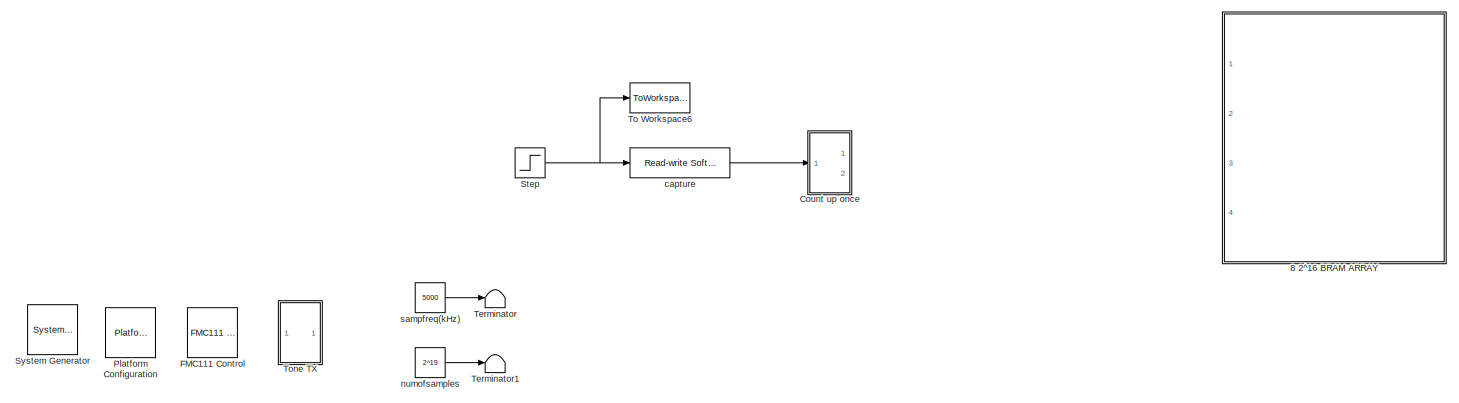
[diagram: root canvas - part 1/3, top center region]
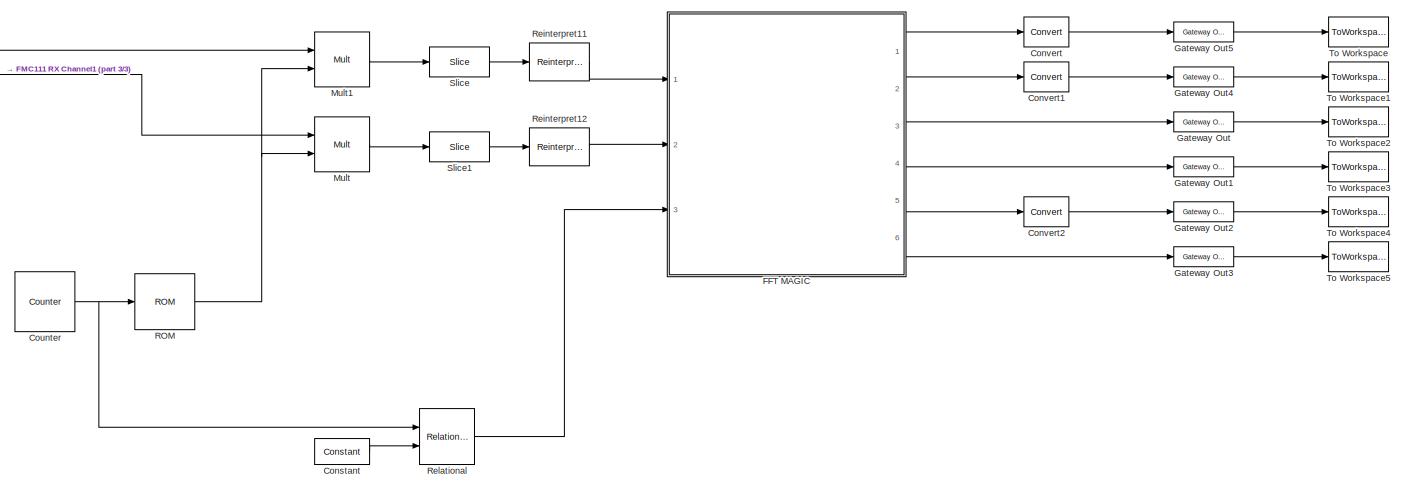
[diagram: root canvas - part 2/3, bottom center region]
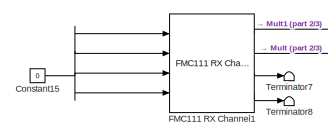
[diagram: root canvas - part 3/3, middle left region]
MODEL slx_5186d268a987
KIND model
CONFIG PostLoadFcn = bps_model_init(gcs);
BLOCK [Reference]  Platform Configuration   REF=mbee4_library/ Platform
Configuration 
  Ports = []
  SourceBlock = mbee4_library/ Platform\nConfiguration
  SourceType = Platform Configuration
  Tag = xps:xsg,ver:4.5
  bp_choice = 'mBEE4'
  bp_option = base
  bp_override = off
  clk_rate = 250000000
  clk_src = fmc_clk1_fx: User defined clock based on FMC_HPC_CLK1
  enable_half_rate = off
  fpga_device = 'xc6vsx475t-2ff1759'
  fpga_type = xc6vsx475t
  hw_sys = mBEE4
  ref_clk_rate = 250000000
  sample_period = 1
  update = off
  xsg_ver = 14.7
BLOCK [Reference]  System Generator  REF=xbsIndex_r4/ System Generator
  AttributesFormatString = System\nGenerator
  Impl_file = ISE Defaults
  Ports = []
  SourceBlock = xbsIndex_r4/ System Generator
  SourceType = Xilinx System Generator Block
  Synth_file = XST Defaults
  Tag = genX
  UserDataPersistent = on
  block_type = sysgen
  clock_wrapper = Clock Enables
  core_generation = According to Block Masks
  dbl_ovrd = According to Block Masks
  dcm_input_clock_period = 10
  deprecated_control = off
  directory = ./radarDFT/sysgen
  eval_field = 0
  has_advanced_control = 0
  incr_netlist = off
  infoedit = System Generator
  package = ff1759
  part = xc6vsx475t
  proj_type = Project Navigator
  run_coregen = off
  sg_icon_stat = 50,50,0,0,token,white,0,58c5b5770fe5f7c311f53dbc6e73f0f6,right,,[ ],[ ]
  sg_mask_display = fprintf('','COMMENT: begin icon graphics');\npatch([0 50 50 0 0 ],[0 0 50 50 0 ],[1 1 1 ]);\npatch([1.6375 16.81 27.31 37.81 48.31 27.31 12.1375 1.6375 ],[36.655 36.655 47.155 36.655 47.155 47.155 47.155 36.655 ],[0.933333 0.203922 0.141176 ]);\npatch([12.1375 27.31 16.81 1.6375 12.1375 ],[26.155 26.155 36.655 36.655 26.155 ],[0.698039 0.0313725 0.219608 ]);\npatch([1.6375 16.81 27.31 12.1375 1.6375 ]...<+327ch>
  sggui_pos = 335,231,464,453
  simulink_period = 1
  speed = -2
  synthesis_tool = XST
  sysclk_period = 4
  testbench = off
  trim_vbits = Everywhere in SubSystem
  xilinxfamily = virtex6
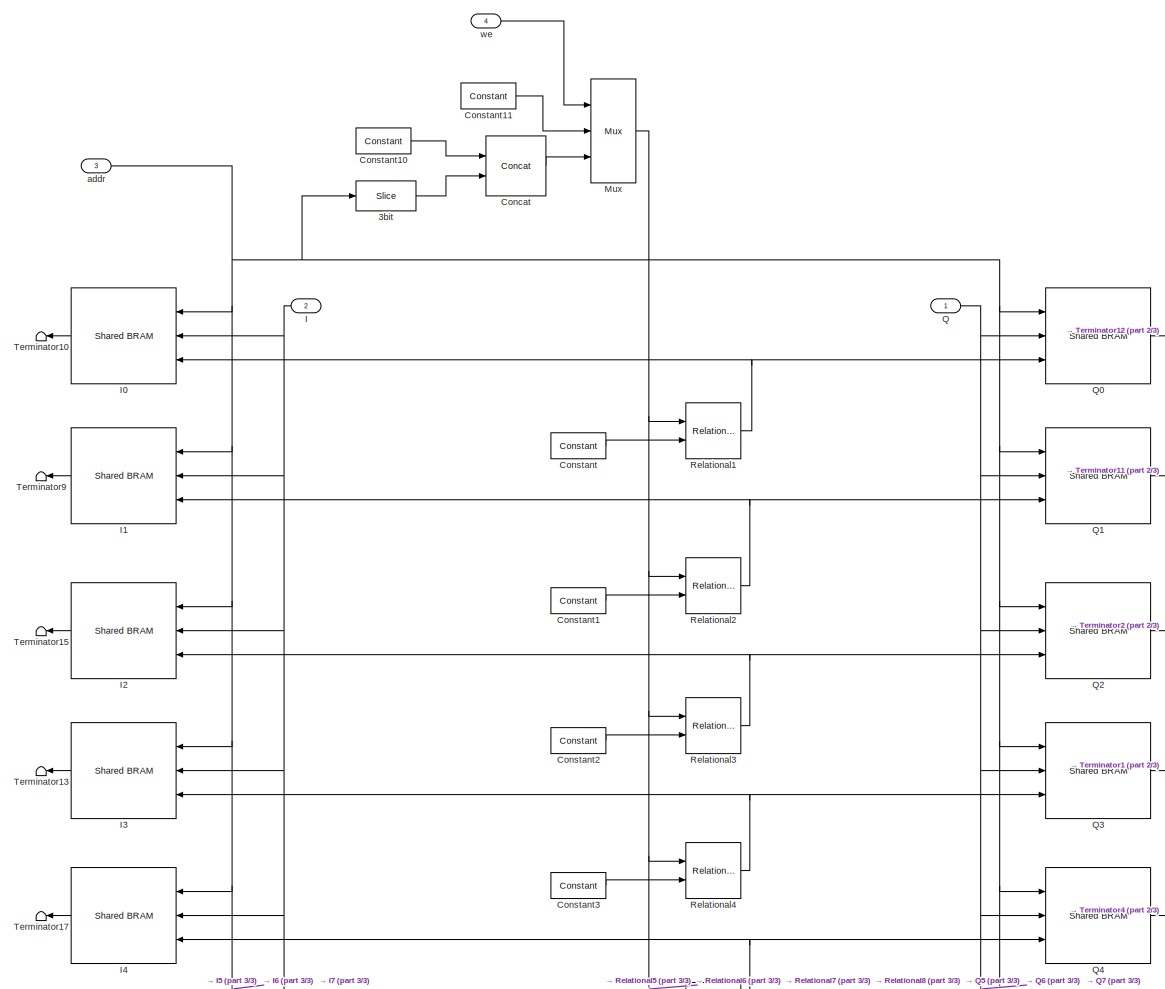
[diagram: 8 2^16 BRAM ARRAY - part 1/3, full width, middle band]
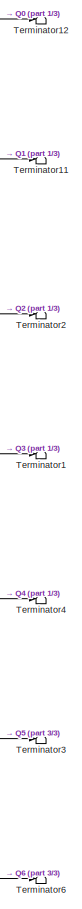
[diagram: 8 2^16 BRAM ARRAY - part 2/3, middle right region]
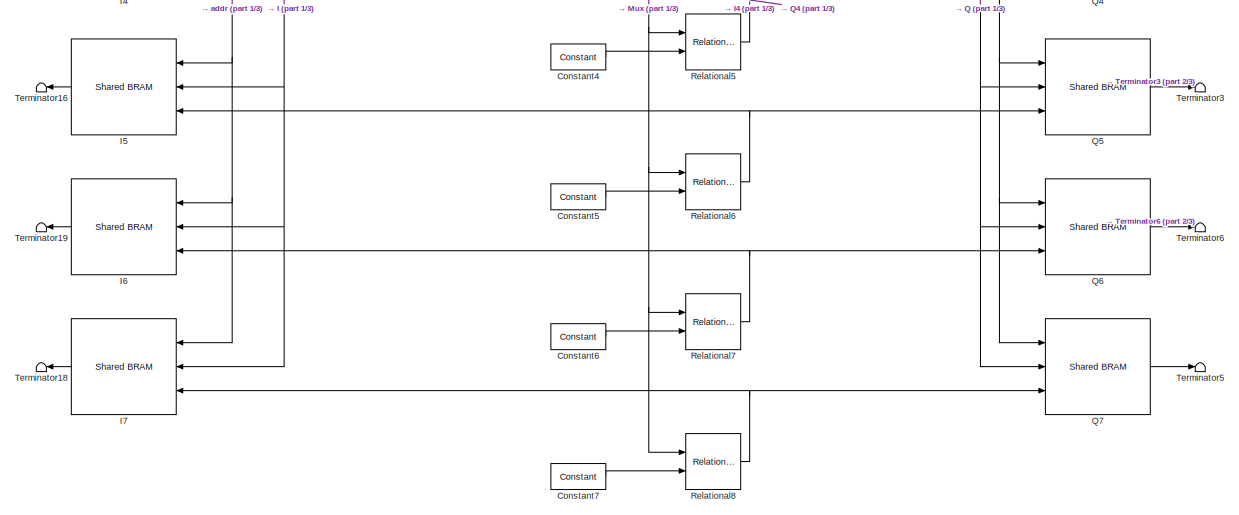
[diagram: 8 2^16 BRAM ARRAY - part 3/3, full width, bottom band]
BLOCK [SubSystem] 8 2^16 BRAM ARRAY
  Commented = on
  FunctionWithSeparateData = off
  MaskHideContents = off
  MinAlgLoopOccurrences = off
  Opaque = off
  Ports = [4]
  PropExecContextOutsideSubsystem = off
  RTWSystemCode = Auto
  RequestExecContextInheritance = off
BLOCK [Reference] 8 2^16 BRAM ARRAY/3bit  REF=xbsIndex_r4/Slice
  Ports = [1, 1]
  SourceBlock = xbsIndex_r4/Slice
  SourceType = Xilinx Bit Slice Extractor Block
  base0 = LSB of Input
  base1 = MSB of Input
  bit0 = 0
  bit1 = 0
  block_type = slice
  boolean_output = off
  dbl_ovrd = off
  has_advanced_control = 0
  infoedit = Extracts a given range of bits from each input sample and presents it at the output.  The output type is ordinarily unsigned with binary point at zero, but can be Boolean when the slice is one bit wide.<br><br>Hardware notes: In hardware this block costs nothing.  <repeated x9 — deduplicated; at blocks: 3bit, Slice, Slice1, Slice11, Slice12, Slice14, Slice17, Slice2, Slice3>
  mode = Upper Bit Location + Width
  nbits = 3
  sg_icon_stat = 60,30,1,1,white,blue,0,1fd851a7,right,,[ ],[ ]
  sg_mask_display = fprintf('','COMMENT: begin icon graphics');\npatch([0 60 60 0 0 ],[0 0 30 30 0 ],[0.77 0.82 0.91 ]);\nplot([0 60 60 0 0 ],[0 0 30 30 0 ]);\npatch([21.1 26.88 30.88 34.88 38.88 30.88 25.1 21.1 ],[19.44 19.44 23.44 19.44 23.44 23.44 23.44 19.44 ],[1 1 1 ]);\npatch([25.1 30.88 26.88 21.1 25.1 ],[15.44 15.44 19.44 19.44 15.44 ],[0.931 0.946 0.973 ]);\npatch([21.1 26.88 30.88 25.1 21.1 ],[11.44 11.44 15.44 ...<+304ch>  <repeated x10 — deduplicated; at blocks: 3bit, Slice1, Slice, Slice11, Slice12, Slice14, Slice17, Slice2, Slice3>
  sggui_pos = 178,79,511,471
BLOCK [Reference] 8 2^16 BRAM ARRAY/Concat  REF=xbsIndex_r4/Concat
  Ports = [2, 1]
  SourceBlock = xbsIndex_r4/Concat
  SourceType = Xilinx Bus Concatenator Block
  block_type = concat
  dbl_ovrd = off
  has_advanced_control = 0
  infoedit = Concatenates two or more inputs.  Output will be cast to an unsigned value with the binary point at zero.
  num_inputs = 2
  sg_icon_stat = 60,60,2,1,white,blue,0,16398980,right,,[ ],[ ]
  sg_mask_display = fprintf('','COMMENT: begin icon graphics');\npatch([0 60 60 0 0 ],[0 0 60 60 0 ],[0.77 0.82 0.91 ]);\nplot([0 60 60 0 0 ],[0 0 60 60 0 ]);\npatch([12.2 23.76 31.76 39.76 47.76 31.76 20.2 12.2 ],[38.88 38.88 46.88 38.88 46.88 46.88 46.88 38.88 ],[1 1 1 ]);\npatch([20.2 31.76 23.76 12.2 20.2 ],[30.88 30.88 38.88 38.88 30.88 ],[0.931 0.946 0.973 ]);\npatch([12.2 23.76 31.76 20.2 12.2 ],[22.88 22.88 30.88 ...<+402ch>
  sggui_pos = 11,22,368,206
BLOCK [Reference] 8 2^16 BRAM ARRAY/Constant  REF=xbsIndex_r4/Constant
  Ports = [0, 1]
  SourceBlock = xbsIndex_r4/Constant
  SourceType = Xilinx Constant Block Block
  arith_type = Unsigned
  bin_pt = 0
  block_type = constant
  carry = CIN
  const = 0
  dbl_ovrd = off
  dsp48_infoedit = The use of this block for DSP48 instructions is deprecated.  Please use the Opmode block.
  equ = P=C
  exp_width = 8
  explicit_period = off
  frac_width = 24
  gui_display_data_type = Fixed-point
  has_advanced_control = 0
  inp1 = P
  inp2 = PCIN>>17
  n_bits = 4
  opr = +
  opselect = C
  period = 1
  preci_type = Single
  sg_icon_stat = 55,26,0,1,white,blue,0,bf4ddd8b,right,,[ ],[ ]
  sg_mask_display = fprintf('','COMMENT: begin icon graphics');\npatch([0 55 55 0 0 ],[0 0 26 26 0 ],[0.77 0.82 0.91 ]);\nplot([0 55 55 0 0 ],[0 0 26 26 0 ]);\npatch([20.325 24.66 27.66 30.66 33.66 27.66 23.325 20.325 ],[16.33 16.33 19.33 16.33 19.33 19.33 19.33 16.33 ],[1 1 1 ]);\npatch([23.325 27.66 24.66 20.325 23.325 ],[13.33 13.33 16.33 16.33 13.33 ],[0.931 0.946 0.973 ]);\npatch([20.325 24.66 27.66 23.325 20.325 ],[...<+323ch>  <repeated x13 — deduplicated; at blocks: Constant, Constant1, Constant10, Constant2, Constant3, Constant4, Constant5, Constant6, Constant7, Constant8>
  sggui_pos = 2,22,368,460
BLOCK [Reference] 8 2^16 BRAM ARRAY/Constant1  REF=xbsIndex_r4/Constant
  Ports = [0, 1]
  SourceBlock = xbsIndex_r4/Constant
  SourceType = Xilinx Constant Block Block
  arith_type = Unsigned
  bin_pt = 0
  block_type = constant
  carry = CIN
  const = 1
  dbl_ovrd = off
  dsp48_infoedit = The use of this block for DSP48 instructions is deprecated.  Please use the Opmode block.
  equ = P=C
  exp_width = 8
  explicit_period = off
  frac_width = 24
  gui_display_data_type = Fixed-point
  has_advanced_control = 0
  inp1 = P
  inp2 = PCIN>>17
  n_bits = 4
  opr = +
  opselect = C
  period = 1
  preci_type = Single
  sg_icon_stat = 55,26,0,1,white,blue,0,1c72b5be,right,,[ ],[ ]
  sggui_pos = 1869,151,368,460
BLOCK [Reference] 8 2^16 BRAM ARRAY/Constant10  REF=xbsIndex_r4/Constant
  Ports = [0, 1]
  SourceBlock = xbsIndex_r4/Constant
  SourceType = Xilinx Constant Block Block
  arith_type = Unsigned
  bin_pt = 0
  block_type = constant
  carry = CIN
  const = 0
  dbl_ovrd = off
  dsp48_infoedit = The use of this block for DSP48 instructions is deprecated.  Please use the Opmode block.
  equ = P=C
  exp_width = 8
  explicit_period = off
  frac_width = 24
  gui_display_data_type = Fixed-point
  has_advanced_control = 0
  inp1 = P
  inp2 = PCIN>>17
  n_bits = 3
  opr = +
  opselect = C
  period = 1
  preci_type = Single
  sg_icon_stat = 55,26,0,1,white,blue,0,bf4ddd8b,right,,[ ],[ ]
  sggui_pos = 11,22,368,460
BLOCK [Reference] 8 2^16 BRAM ARRAY/Constant11  REF=xbsIndex_r4/Constant
  Ports = [0, 1]
  SourceBlock = xbsIndex_r4/Constant
  SourceType = Xilinx Constant Block Block
  arith_type = Unsigned
  bin_pt = 0
  block_type = constant
  carry = CIN
  const = 15
  dbl_ovrd = off
  dsp48_infoedit = The use of this block for DSP48 instructions is deprecated.  Please use the Opmode block.
  equ = P=C
  exp_width = 8
  explicit_period = off
  frac_width = 24
  gui_display_data_type = Fixed-point
  has_advanced_control = 0
  inp1 = P
  inp2 = PCIN>>17
  n_bits = 4
  opr = +
  opselect = C
  period = 1
  preci_type = Single
  sg_icon_stat = 55,26,0,1,white,blue,0,1164c07c,right,,[ ],[ ]
  sg_mask_display = fprintf('','COMMENT: begin icon graphics');\npatch([0 55 55 0 0 ],[0 0 26 26 0 ],[0.77 0.82 0.91 ]);\nplot([0 55 55 0 0 ],[0 0 26 26 0 ]);\npatch([20.325 24.66 27.66 30.66 33.66 27.66 23.325 20.325 ],[16.33 16.33 19.33 16.33 19.33 19.33 19.33 16.33 ],[1 1 1 ]);\npatch([23.325 27.66 24.66 20.325 23.325 ],[13.33 13.33 16.33 16.33 13.33 ],[0.931 0.946 0.973 ]);\npatch([20.325 24.66 27.66 23.325 20.325 ],[...<+324ch>
  sggui_pos = 2,22,368,460
BLOCK [Reference] 8 2^16 BRAM ARRAY/Constant2  REF=xbsIndex_r4/Constant
  Ports = [0, 1]
  SourceBlock = xbsIndex_r4/Constant
  SourceType = Xilinx Constant Block Block
  arith_type = Unsigned
  bin_pt = 0
  block_type = constant
  carry = CIN
  const = 2
  dbl_ovrd = off
  dsp48_infoedit = The use of this block for DSP48 instructions is deprecated.  Please use the Opmode block.
  equ = P=C
  exp_width = 8
  explicit_period = off
  frac_width = 24
  gui_display_data_type = Fixed-point
  has_advanced_control = 0
  inp1 = P
  inp2 = PCIN>>17
  n_bits = 4
  opr = +
  opselect = C
  period = 1
  preci_type = Single
  sg_icon_stat = 55,26,0,1,white,blue,0,fca86624,right,,[ ],[ ]
  sggui_pos = 1748,183,368,460
BLOCK [Reference] 8 2^16 BRAM ARRAY/Constant3  REF=xbsIndex_r4/Constant
  Ports = [0, 1]
  SourceBlock = xbsIndex_r4/Constant
  SourceType = Xilinx Constant Block Block
  arith_type = Unsigned
  bin_pt = 0
  block_type = constant
  carry = CIN
  const = 3
  dbl_ovrd = off
  dsp48_infoedit = The use of this block for DSP48 instructions is deprecated.  Please use the Opmode block.
  equ = P=C
  exp_width = 8
  explicit_period = off
  frac_width = 24
  gui_display_data_type = Fixed-point
  has_advanced_control = 0
  inp1 = P
  inp2 = PCIN>>17
  n_bits = 4
  opr = +
  opselect = C
  period = 1
  preci_type = Single
  sg_icon_stat = 55,26,0,1,white,blue,0,279a71c8,right,,[ ],[ ]
  sggui_pos = -9,22,368,460
BLOCK [Reference] 8 2^16 BRAM ARRAY/Constant4  REF=xbsIndex_r4/Constant
  Ports = [0, 1]
  SourceBlock = xbsIndex_r4/Constant
  SourceType = Xilinx Constant Block Block
  arith_type = Unsigned
  bin_pt = 0
  block_type = constant
  carry = CIN
  const = 4
  dbl_ovrd = off
  dsp48_infoedit = The use of this block for DSP48 instructions is deprecated.  Please use the Opmode block.
  equ = P=C
  exp_width = 8
  explicit_period = off
  frac_width = 24
  gui_display_data_type = Fixed-point
  has_advanced_control = 0
  inp1 = P
  inp2 = PCIN>>17
  n_bits = 4
  opr = +
  opselect = C
  period = 1
  preci_type = Single
  sg_icon_stat = 55,26,0,1,white,blue,0,85f36853,right,,[ ],[ ]
  sggui_pos = -7,22,368,460
BLOCK [Reference] 8 2^16 BRAM ARRAY/Constant5  REF=xbsIndex_r4/Constant
  Ports = [0, 1]
  SourceBlock = xbsIndex_r4/Constant
  SourceType = Xilinx Constant Block Block
  arith_type = Unsigned
  bin_pt = 0
  block_type = constant
  carry = CIN
  const = 5
  dbl_ovrd = off
  dsp48_infoedit = The use of this block for DSP48 instructions is deprecated.  Please use the Opmode block.
  equ = P=C
  exp_width = 8
  explicit_period = off
  frac_width = 24
  gui_display_data_type = Fixed-point
  has_advanced_control = 0
  inp1 = P
  inp2 = PCIN>>17
  n_bits = 4
  opr = +
  opselect = C
  period = 1
  preci_type = Single
  sg_icon_stat = 55,26,0,1,white,blue,0,98872051,right,,[ ],[ ]
  sggui_pos = -9,22,368,460
BLOCK [Reference] 8 2^16 BRAM ARRAY/Constant6  REF=xbsIndex_r4/Constant
  Ports = [0, 1]
  SourceBlock = xbsIndex_r4/Constant
  SourceType = Xilinx Constant Block Block
  arith_type = Unsigned
  bin_pt = 0
  block_type = constant
  carry = CIN
  const = 6
  dbl_ovrd = off
  dsp48_infoedit = The use of this block for DSP48 instructions is deprecated.  Please use the Opmode block.
  equ = P=C
  exp_width = 8
  explicit_period = off
  frac_width = 24
  gui_display_data_type = Fixed-point
  has_advanced_control = 0
  inp1 = P
  inp2 = PCIN>>17
  n_bits = 4
  opr = +
  opselect = C
  period = 1
  preci_type = Single
  sg_icon_stat = 55,26,0,1,white,blue,0,f0403ad7,right,,[ ],[ ]
  sggui_pos = -9,22,368,460
BLOCK [Reference] 8 2^16 BRAM ARRAY/Constant7  REF=xbsIndex_r4/Constant
  Ports = [0, 1]
  SourceBlock = xbsIndex_r4/Constant
  SourceType = Xilinx Constant Block Block
  arith_type = Unsigned
  bin_pt = 0
  block_type = constant
  carry = CIN
  const = 7
  dbl_ovrd = off
  dsp48_infoedit = The use of this block for DSP48 instructions is deprecated.  Please use the Opmode block.
  equ = P=C
  exp_width = 8
  explicit_period = off
  frac_width = 24
  gui_display_data_type = Fixed-point
  has_advanced_control = 0
  inp1 = P
  inp2 = PCIN>>17
  n_bits = 4
  opr = +
  opselect = C
  period = 1
  preci_type = Single
  sg_icon_stat = 55,26,0,1,white,blue,0,2a6960a5,right,,[ ],[ ]
  sggui_pos = -9,22,368,460
BLOCK [Inport] 8 2^16 BRAM ARRAY/I
  IconDisplay = Port number
  Port = 2
BLOCK [Reference] 8 2^16 BRAM ARRAY/I0  REF=xps_library/Shared BRAM  (lib defined in mdl_00b5cec29cd0, mdl_02ab6ecaa3d1, +5 more)
  Ports = [3, 1]
  SourceBlock = xps_library/Shared BRAM
  SourceType = Shared BRAM
  Tag = xps:bram
  addr_width = 16
  arith_type = Unsigned
  bin_pt = 0
  bitwidth = 32
  init_vals = 0
  sample_period = 1
  update = off
BLOCK [Reference] 8 2^16 BRAM ARRAY/I1  REF=xps_library/Shared BRAM  (lib defined in mdl_00b5cec29cd0, mdl_02ab6ecaa3d1, +5 more)
  Ports = [3, 1]
  SourceBlock = xps_library/Shared BRAM
  SourceType = Shared BRAM
  Tag = xps:bram
  addr_width = 16
  arith_type = Unsigned
  bin_pt = 0
  bitwidth = 32
  init_vals = 0
  sample_period = 1
  update = off
BLOCK [Reference] 8 2^16 BRAM ARRAY/I2  REF=xps_library/Shared BRAM  (lib defined in mdl_00b5cec29cd0, mdl_02ab6ecaa3d1, +5 more)
  Ports = [3, 1]
  SourceBlock = xps_library/Shared BRAM
  SourceType = Shared BRAM
  Tag = xps:bram
  addr_width = 16
  arith_type = Unsigned
  bin_pt = 0
  bitwidth = 32
  init_vals = 0
  sample_period = 1
  update = off
BLOCK [Reference] 8 2^16 BRAM ARRAY/I3  REF=xps_library/Shared BRAM  (lib defined in mdl_00b5cec29cd0, mdl_02ab6ecaa3d1, +5 more)
  Ports = [3, 1]
  SourceBlock = xps_library/Shared BRAM
  SourceType = Shared BRAM
  Tag = xps:bram
  addr_width = 16
  arith_type = Unsigned
  bin_pt = 0
  bitwidth = 32
  init_vals = 0
  sample_period = 1
  update = off
BLOCK [Reference] 8 2^16 BRAM ARRAY/I4  REF=xps_library/Shared BRAM  (lib defined in mdl_00b5cec29cd0, mdl_02ab6ecaa3d1, +5 more)
  Ports = [3, 1]
  SourceBlock = xps_library/Shared BRAM
  SourceType = Shared BRAM
  Tag = xps:bram
  addr_width = 16
  arith_type = Unsigned
  bin_pt = 0
  bitwidth = 32
  init_vals = 0
  sample_period = 1
  update = off
BLOCK [Reference] 8 2^16 BRAM ARRAY/I5  REF=xps_library/Shared BRAM  (lib defined in mdl_00b5cec29cd0, mdl_02ab6ecaa3d1, +5 more)
  Ports = [3, 1]
  SourceBlock = xps_library/Shared BRAM
  SourceType = Shared BRAM
  Tag = xps:bram
  addr_width = 16
  arith_type = Unsigned
  bin_pt = 0
  bitwidth = 32
  init_vals = 0
  sample_period = 1
  update = off
BLOCK [Reference] 8 2^16 BRAM ARRAY/I6  REF=xps_library/Shared BRAM  (lib defined in mdl_00b5cec29cd0, mdl_02ab6ecaa3d1, +5 more)
  Ports = [3, 1]
  SourceBlock = xps_library/Shared BRAM
  SourceType = Shared BRAM
  Tag = xps:bram
  addr_width = 16
  arith_type = Unsigned
  bin_pt = 0
  bitwidth = 32
  init_vals = 0
  sample_period = 1
  update = off
BLOCK [Reference] 8 2^16 BRAM ARRAY/I7  REF=xps_library/Shared BRAM  (lib defined in mdl_00b5cec29cd0, mdl_02ab6ecaa3d1, +5 more)
  Ports = [3, 1]
  SourceBlock = xps_library/Shared BRAM
  SourceType = Shared BRAM
  Tag = xps:bram
  addr_width = 16
  arith_type = Unsigned
  bin_pt = 0
  bitwidth = 32
  init_vals = 0
  sample_period = 1
  update = off
BLOCK [Reference] 8 2^16 BRAM ARRAY/Mux  REF=xbsIndex_r4/Mux
  Ports = [3, 1]
  SourceBlock = xbsIndex_r4/Mux
  SourceType = Xilinx Bus Multiplexer Block
  arith_type = Unsigned
  bin_pt = 0
  block_type = mux
  dbl_ovrd = off
  en = off
  has_advanced_control = 0
  inputs = 2
  latency = 0
  n_bits = 4
  overflow = Wrap
  precision = User Defined
  quantization = Truncate
  sg_icon_stat = 45,104,3,1,white,blue,3,eb98d690,right,,[ ],[ ]
  sg_mask_display = fprintf('','COMMENT: begin icon graphics');\npatch([0 45 45 0 0 ],[0 14.8571 89.1429 104 0 ],[0.77 0.82 0.91 ]);\nplot([0 45 45 0 0 ],[0 14.8571 89.1429 104 0 ]);\npatch([8.65 17.32 23.32 29.32 35.32 23.32 14.65 8.65 ],[58.66 58.66 64.66 58.66 64.66 64.66 64.66 58.66 ],[1 1 1 ]);\npatch([14.65 23.32 17.32 8.65 14.65 ],[52.66 52.66 58.66 58.66 52.66 ],[0.931 0.946 0.973 ]);\npatch([8.65 17.32 23.32 14.6...<+466ch>  <repeated x3 — deduplicated; at blocks: Mux, Mux1>
  sggui_pos = 11,22,369,356
  xl_area = [0,0,0,0,0,0,0]
  xl_use_area = off
BLOCK [Inport] 8 2^16 BRAM ARRAY/Q
  IconDisplay = Port number
BLOCK [Reference] 8 2^16 BRAM ARRAY/Q0  REF=xps_library/Shared BRAM  (lib defined in mdl_00b5cec29cd0, mdl_02ab6ecaa3d1, +5 more)
  Ports = [3, 1]
  SourceBlock = xps_library/Shared BRAM
  SourceType = Shared BRAM
  Tag = xps:bram
  addr_width = 16
  arith_type = Unsigned
  bin_pt = 0
  bitwidth = 32
  init_vals = 0
  sample_period = 1
  update = off
BLOCK [Reference] 8 2^16 BRAM ARRAY/Q1  REF=xps_library/Shared BRAM  (lib defined in mdl_00b5cec29cd0, mdl_02ab6ecaa3d1, +5 more)
  Ports = [3, 1]
  SourceBlock = xps_library/Shared BRAM
  SourceType = Shared BRAM
  Tag = xps:bram
  addr_width = 16
  arith_type = Unsigned
  bin_pt = 0
  bitwidth = 32
  init_vals = 0
  sample_period = 1
  update = off
BLOCK [Reference] 8 2^16 BRAM ARRAY/Q2  REF=xps_library/Shared BRAM  (lib defined in mdl_00b5cec29cd0, mdl_02ab6ecaa3d1, +5 more)
  Ports = [3, 1]
  SourceBlock = xps_library/Shared BRAM
  SourceType = Shared BRAM
  Tag = xps:bram
  addr_width = 16
  arith_type = Unsigned
  bin_pt = 0
  bitwidth = 32
  init_vals = 0
  sample_period = 1
  update = off
BLOCK [Reference] 8 2^16 BRAM ARRAY/Q3  REF=xps_library/Shared BRAM  (lib defined in mdl_00b5cec29cd0, mdl_02ab6ecaa3d1, +5 more)
  Ports = [3, 1]
  SourceBlock = xps_library/Shared BRAM
  SourceType = Shared BRAM
  Tag = xps:bram
  addr_width = 16
  arith_type = Unsigned
  bin_pt = 0
  bitwidth = 32
  init_vals = 0
  sample_period = 1
  update = off
BLOCK [Reference] 8 2^16 BRAM ARRAY/Q4  REF=xps_library/Shared BRAM  (lib defined in mdl_00b5cec29cd0, mdl_02ab6ecaa3d1, +5 more)
  Ports = [3, 1]
  SourceBlock = xps_library/Shared BRAM
  SourceType = Shared BRAM
  Tag = xps:bram
  addr_width = 16
  arith_type = Unsigned
  bin_pt = 0
  bitwidth = 32
  init_vals = 0
  sample_period = 1
  update = off
BLOCK [Reference] 8 2^16 BRAM ARRAY/Q5  REF=xps_library/Shared BRAM  (lib defined in mdl_00b5cec29cd0, mdl_02ab6ecaa3d1, +5 more)
  Ports = [3, 1]
  SourceBlock = xps_library/Shared BRAM
  SourceType = Shared BRAM
  Tag = xps:bram
  addr_width = 16
  arith_type = Unsigned
  bin_pt = 0
  bitwidth = 32
  init_vals = 0
  sample_period = 1
  update = off
BLOCK [Reference] 8 2^16 BRAM ARRAY/Q6  REF=xps_library/Shared BRAM  (lib defined in mdl_00b5cec29cd0, mdl_02ab6ecaa3d1, +5 more)
  Ports = [3, 1]
  SourceBlock = xps_library/Shared BRAM
  SourceType = Shared BRAM
  Tag = xps:bram
  addr_width = 16
  arith_type = Unsigned
  bin_pt = 0
  bitwidth = 32
  init_vals = 0
  sample_period = 1
  update = off
BLOCK [Reference] 8 2^16 BRAM ARRAY/Q7  REF=xps_library/Shared BRAM  (lib defined in mdl_00b5cec29cd0, mdl_02ab6ecaa3d1, +5 more)
  Ports = [3, 1]
  SourceBlock = xps_library/Shared BRAM
  SourceType = Shared BRAM
  Tag = xps:bram
  addr_width = 16
  arith_type = Unsigned
  bin_pt = 0
  bitwidth = 32
  init_vals = 0
  sample_period = 1
  update = off
BLOCK [Reference] 8 2^16 BRAM ARRAY/Relational1  REF=xbsIndex_r4/Relational
  Ports = [2, 1]
  SourceBlock = xbsIndex_r4/Relational
  SourceType = Xilinx Arithmetic Relational Operator Block
  block_type = relational
  dbl_ovrd = off
  en = off
  has_advanced_control = 0
  latency = 0
  mode = a=b
  sg_icon_stat = 55,56,2,1,white,blue,0,2a81ff49,right,,[ ],[ ]
  sg_mask_display = fprintf('','COMMENT: begin icon graphics');\npatch([0 55 55 0 0 ],[0 0 56 56 0 ],[0.77 0.82 0.91 ]);\nplot([0 55 55 0 0 ],[0 0 56 56 0 ]);\npatch([11.425 21.54 28.54 35.54 42.54 28.54 18.425 11.425 ],[35.77 35.77 42.77 35.77 42.77 42.77 42.77 35.77 ],[1 1 1 ]);\npatch([18.425 28.54 21.54 11.425 18.425 ],[28.77 28.77 35.77 35.77 28.77 ],[0.931 0.946 0.973 ]);\npatch([11.425 21.54 28.54 18.425 11.425 ],[...<+459ch>  <repeated x9 — deduplicated; at blocks: Relational1, Relational2, Relational3, Relational4, Relational5, Relational6, Relational7, Relational8, Relational>
  sggui_pos = -1,-1,-1,-1
  xl_area = [0,0,0,0,0,0,0]
  xl_use_area = off
BLOCK [Reference] 8 2^16 BRAM ARRAY/Relational2  REF=xbsIndex_r4/Relational
  Ports = [2, 1]
  SourceBlock = xbsIndex_r4/Relational
  SourceType = Xilinx Arithmetic Relational Operator Block
  block_type = relational
  dbl_ovrd = off
  en = off
  has_advanced_control = 0
  latency = 0
  mode = a=b
  sg_icon_stat = 55,56,2,1,white,blue,0,2a81ff49,right,,[ ],[ ]
  sggui_pos = -1,-1,-1,-1
  xl_area = [0,0,0,0,0,0,0]
  xl_use_area = off
BLOCK [Reference] 8 2^16 BRAM ARRAY/Relational3  REF=xbsIndex_r4/Relational
  Ports = [2, 1]
  SourceBlock = xbsIndex_r4/Relational
  SourceType = Xilinx Arithmetic Relational Operator Block
  block_type = relational
  dbl_ovrd = off
  en = off
  has_advanced_control = 0
  latency = 0
  mode = a=b
  sg_icon_stat = 55,56,2,1,white,blue,0,2a81ff49,right,,[ ],[ ]
  sggui_pos = -1,-1,-1,-1
  xl_area = [0,0,0,0,0,0,0]
  xl_use_area = off
BLOCK [Reference] 8 2^16 BRAM ARRAY/Relational4  REF=xbsIndex_r4/Relational
  Ports = [2, 1]
  SourceBlock = xbsIndex_r4/Relational
  SourceType = Xilinx Arithmetic Relational Operator Block
  block_type = relational
  dbl_ovrd = off
  en = off
  has_advanced_control = 0
  latency = 0
  mode = a=b
  sg_icon_stat = 55,56,2,1,white,blue,0,2a81ff49,right,,[ ],[ ]
  sggui_pos = -1,-1,-1,-1
  xl_area = [0,0,0,0,0,0,0]
  xl_use_area = off
BLOCK [Reference] 8 2^16 BRAM ARRAY/Relational5  REF=xbsIndex_r4/Relational
  Ports = [2, 1]
  SourceBlock = xbsIndex_r4/Relational
  SourceType = Xilinx Arithmetic Relational Operator Block
  block_type = relational
  dbl_ovrd = off
  en = off
  has_advanced_control = 0
  latency = 0
  mode = a=b
  sg_icon_stat = 55,56,2,1,white,blue,0,2a81ff49,right,,[ ],[ ]
  sggui_pos = -1,-1,-1,-1
  xl_area = [0,0,0,0,0,0,0]
  xl_use_area = off
BLOCK [Reference] 8 2^16 BRAM ARRAY/Relational6  REF=xbsIndex_r4/Relational
  Ports = [2, 1]
  SourceBlock = xbsIndex_r4/Relational
  SourceType = Xilinx Arithmetic Relational Operator Block
  block_type = relational
  dbl_ovrd = off
  en = off
  has_advanced_control = 0
  latency = 0
  mode = a=b
  sg_icon_stat = 55,56,2,1,white,blue,0,2a81ff49,right,,[ ],[ ]
  sggui_pos = -1,-1,-1,-1
  xl_area = [0,0,0,0,0,0,0]
  xl_use_area = off
BLOCK [Reference] 8 2^16 BRAM ARRAY/Relational7  REF=xbsIndex_r4/Relational
  Ports = [2, 1]
  SourceBlock = xbsIndex_r4/Relational
  SourceType = Xilinx Arithmetic Relational Operator Block
  block_type = relational
  dbl_ovrd = off
  en = off
  has_advanced_control = 0
  latency = 0
  mode = a=b
  sg_icon_stat = 55,56,2,1,white,blue,0,2a81ff49,right,,[ ],[ ]
  sggui_pos = -1,-1,-1,-1
  xl_area = [0,0,0,0,0,0,0]
  xl_use_area = off
BLOCK [Reference] 8 2^16 BRAM ARRAY/Relational8  REF=xbsIndex_r4/Relational
  Ports = [2, 1]
  SourceBlock = xbsIndex_r4/Relational
  SourceType = Xilinx Arithmetic Relational Operator Block
  block_type = relational
  dbl_ovrd = off
  en = off
  has_advanced_control = 0
  latency = 0
  mode = a=b
  sg_icon_stat = 55,56,2,1,white,blue,0,2a81ff49,right,,[ ],[ ]
  sggui_pos = -1,-1,-1,-1
  xl_area = [0,0,0,0,0,0,0]
  xl_use_area = off
BLOCK [Terminator] 8 2^16 BRAM ARRAY/Terminator1
BLOCK [Terminator] 8 2^16 BRAM ARRAY/Terminator10
BLOCK [Terminator] 8 2^16 BRAM ARRAY/Terminator11
BLOCK [Terminator] 8 2^16 BRAM ARRAY/Terminator12
BLOCK [Terminator] 8 2^16 BRAM ARRAY/Terminator13
BLOCK [Terminator] 8 2^16 BRAM ARRAY/Terminator15
BLOCK [Terminator] 8 2^16 BRAM ARRAY/Terminator16
BLOCK [Terminator] 8 2^16 BRAM ARRAY/Terminator17
BLOCK [Terminator] 8 2^16 BRAM ARRAY/Terminator18
BLOCK [Terminator] 8 2^16 BRAM ARRAY/Terminator19
BLOCK [Terminator] 8 2^16 BRAM ARRAY/Terminator2
BLOCK [Terminator] 8 2^16 BRAM ARRAY/Terminator3
BLOCK [Terminator] 8 2^16 BRAM ARRAY/Terminator4
BLOCK [Terminator] 8 2^16 BRAM ARRAY/Terminator5
BLOCK [Terminator] 8 2^16 BRAM ARRAY/Terminator6
BLOCK [Terminator] 8 2^16 BRAM ARRAY/Terminator9
BLOCK [Inport] 8 2^16 BRAM ARRAY/addr
  IconDisplay = Port number
  Port = 3
BLOCK [Inport] 8 2^16 BRAM ARRAY/we
  IconDisplay = Port number
  Port = 4
BLOCK [Reference] Constant  REF=xbsIndex_r4/Constant
  Ports = [0, 1]
  SourceBlock = xbsIndex_r4/Constant
  SourceType = Xilinx Constant Block Block
  arith_type = Unsigned
  bin_pt = 0
  block_type = constant
  carry = CIN
  const = 252
  dbl_ovrd = off
  dsp48_infoedit = The use of this block for DSP48 instructions is deprecated.  Please use the Opmode block.
  equ = P=C
  exp_width = 8
  explicit_period = off
  frac_width = 24
  gui_display_data_type = Fixed-point
  has_advanced_control = 0
  inp1 = P
  inp2 = PCIN>>17
  n_bits = 8
  opr = +
  opselect = C
  period = 1
  preci_type = Single
  sg_icon_stat = 55,26,0,1,white,blue,0,49291bfd,right,,[ ],[ ]
  sg_mask_display = fprintf('','COMMENT: begin icon graphics');\npatch([0 55 55 0 0 ],[0 0 26 26 0 ],[0.77 0.82 0.91 ]);\nplot([0 55 55 0 0 ],[0 0 26 26 0 ]);\npatch([20.325 24.66 27.66 30.66 33.66 27.66 23.325 20.325 ],[16.33 16.33 19.33 16.33 19.33 19.33 19.33 16.33 ],[1 1 1 ]);\npatch([23.325 27.66 24.66 20.325 23.325 ],[13.33 13.33 16.33 16.33 13.33 ],[0.931 0.946 0.973 ]);\npatch([20.325 24.66 27.66 23.325 20.325 ],[...<+325ch>
  sggui_pos = 1053,208,368,460
BLOCK [Constant] Constant15
  SampleTime = 1
  Value = 0
BLOCK [Reference] Convert  REF=xbsIndex_r4/Convert
  Ports = [1, 1]
  SourceBlock = xbsIndex_r4/Convert
  SourceType = Xilinx Type Converter Block
  arith_type = Signed  (2's comp)
  bin_pt = 0
  block_type = convert
  dbl_ovrd = off
  en = off
  exp_bits = 8
  float_type = Double
  fraction_bits = 24
  gui_display_data_type = Fixed-point
  has_advanced_control = 0
  infoedit = Hardware notes: rounding and saturating require hardware resources; truncating and wrapping do not.
  latency = 0
  n_bits = 14
  overflow = Wrap
  pipeline = off
  quantization = Truncate
  sg_icon_stat = 45,30,1,1,white,blue,0,edca21da,right,,[ ],[ ]
  sg_mask_display = fprintf('','COMMENT: begin icon graphics');\npatch([0 45 45 0 0 ],[0 0 30 30 0 ],[0.77 0.82 0.91 ]);\nplot([0 45 45 0 0 ],[0 0 30 30 0 ]);\npatch([13.1 18.88 22.88 26.88 30.88 22.88 17.1 13.1 ],[19.44 19.44 23.44 19.44 23.44 23.44 23.44 19.44 ],[1 1 1 ]);\npatch([17.1 22.88 18.88 13.1 17.1 ],[15.44 15.44 19.44 19.44 15.44 ],[0.931 0.946 0.973 ]);\npatch([13.1 18.88 22.88 17.1 13.1 ],[11.44 11.44 15.44 ...<+303ch>  <repeated x3 — deduplicated; at blocks: Convert, Convert1, Convert2>
  sggui_pos = -9,22,490,624
  xl_area = [0,0,0,0,0,0,0]
  xl_use_area = off
BLOCK [Reference] Convert1  REF=xbsIndex_r4/Convert
  Ports = [1, 1]
  SourceBlock = xbsIndex_r4/Convert
  SourceType = Xilinx Type Converter Block
  arith_type = Signed  (2's comp)
  bin_pt = 0
  block_type = convert
  dbl_ovrd = off
  en = off
  exp_bits = 8
  float_type = Double
  fraction_bits = 24
  gui_display_data_type = Fixed-point
  has_advanced_control = 0
  infoedit = Hardware notes: rounding and saturating require hardware resources; truncating and wrapping do not.
  latency = 0
  n_bits = 14
  overflow = Wrap
  pipeline = off
  quantization = Truncate
  sg_icon_stat = 45,30,1,1,white,blue,0,edca21da,right,,[ ],[ ]
  sggui_pos = -9,22,490,624
  xl_area = [0,0,0,0,0,0,0]
  xl_use_area = off
BLOCK [Reference] Convert2  REF=xbsIndex_r4/Convert
  Ports = [1, 1]
  SourceBlock = xbsIndex_r4/Convert
  SourceType = Xilinx Type Converter Block
  arith_type = Unsigned
  bin_pt = 0
  block_type = convert
  dbl_ovrd = off
  en = off
  exp_bits = 8
  float_type = Double
  fraction_bits = 24
  gui_display_data_type = Fixed-point
  has_advanced_control = 0
  infoedit = Hardware notes: rounding and saturating require hardware resources; truncating and wrapping do not.
  latency = 0
  n_bits = 8
  overflow = Wrap
  pipeline = off
  quantization = Truncate
  sg_icon_stat = 45,30,1,1,white,blue,0,edca21da,right,,[ ],[ ]
  sggui_pos = 492,74,490,624
  xl_area = [0,0,0,0,0,0,0]
  xl_use_area = off
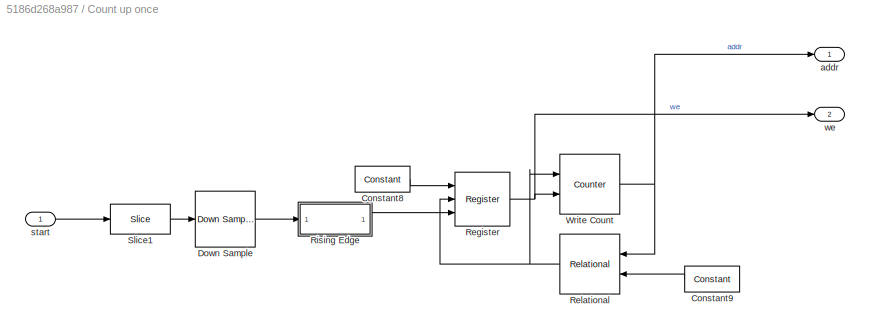
BLOCK [SubSystem] Count up once
  Commented = on
  FunctionWithSeparateData = off
  MaskHideContents = off
  MinAlgLoopOccurrences = off
  Opaque = off
  Ports = [1, 2]
  PropExecContextOutsideSubsystem = off
  RTWSystemCode = Auto
  RequestExecContextInheritance = off
BLOCK [Reference] Count up once/Constant8  REF=xbsIndex_r4/Constant
  Ports = [0, 1]
  SourceBlock = xbsIndex_r4/Constant
  SourceType = Xilinx Constant Block Block
  arith_type = Boolean
  bin_pt = 0
  block_type = constant
  block_version = 10.1.3
  carry = CIN
  const = 1
  dbl_ovrd = off
  dsp48_infoedit = The use of this block for DSP48 instructions is deprecated.  Please use the Opmode block.
  equ = P=C
  exp_width = 8
  explicit_period = off
  frac_width = 24
  gui_display_data_type = Fixed-point
  has_advanced_control = 0
  inp1 = P
  inp2 = PCIN>>17
  n_bits = 1
  opr = +
  opselect = C
  period = 1
  preci_type = Single
  sg_icon_stat = 55,26,0,1,white,blue,0,1c72b5be,right,,[ ],[ ]
  sg_list_contents = {'table'=>{'carry'=>'popup(0|1|CIN|~SIGN(P or PCIN)|~SIGN(A*B or A:B)|~SIGND(A*B or A:B))','inp1'=>'popup(0|P|A:B|A*B|C|P+C|A:B+C)','inp2'=>'popup(0|PCIN|P|C|PCIN>>17|P>>17)','opselect'=>'popup(C + A*B|PCIN + A*B|P + A*B|A * B|C + A:B|C - A:B|C|Custom)','userSelections'=>{'carry'=>'CIN','inp1'=>'P','inp2'=>'PCIN>>17','opselect'=>'C'}}}
  sggui_pos = 20,20,400,346
BLOCK [Reference] Count up once/Constant9  REF=xbsIndex_r4/Constant
  Ports = [0, 1]
  SourceBlock = xbsIndex_r4/Constant
  SourceType = Xilinx Constant Block Block
  arith_type = Unsigned
  bin_pt = 0
  block_type = constant
  block_version = 10.1.3
  carry = CIN
  const = str2num(get_param('radarDFT/numofsamples','value'))-2
  dbl_ovrd = off
  dsp48_infoedit = The use of this block for DSP48 instructions is deprecated.  Please use the Opmode block.
  equ = P=C
  exp_width = 8
  explicit_period = off
  frac_width = 24
  gui_display_data_type = Fixed-point
  has_advanced_control = 0
  inp1 = P
  inp2 = PCIN>>17
  n_bits = 19
  opr = +
  opselect = C
  period = 1e-8
  preci_type = Single
  sg_icon_stat = 55,26,0,1,white,blue,0,120cde93,left,,[ ],[ ]
  sg_mask_display = fprintf('','COMMENT: begin icon graphics');\npatch([0 55 55 0 0 ],[0 0 26 26 0 ],[0.77 0.82 0.91 ]);\nplot([0 55 55 0 0 ],[0 0 26 26 0 ]);\npatch([20.325 24.66 27.66 30.66 33.66 27.66 23.325 20.325 ],[16.33 16.33 19.33 16.33 19.33 19.33 19.33 16.33 ],[1 1 1 ]);\npatch([23.325 27.66 24.66 20.325 23.325 ],[13.33 13.33 16.33 16.33 13.33 ],[0.931 0.946 0.973 ]);\npatch([20.325 24.66 27.66 23.325 20.325 ],[...<+328ch>
  sggui_pos = 649,222,400,460
BLOCK [Reference] Count up once/Down Sample  REF=xbsIndex_r4/Down Sample
  Ports = [1, 1]
  SourceBlock = xbsIndex_r4/Down Sample
  SourceType = Xilinx Down Sampler Block
  block_type = dsamp
  dbl_ovrd = off
  en = off
  has_advanced_control = 0
  infoedit = Hardware notes: Sample and Latency controls determine the hardware implementation.  The cost in hardware of different implementations varies considerably; press Help for details.
  latency = 1
  sample_phase = Last Value of Frame  (most efficient)
  sample_ratio = fix(250000/str2num(get_param('radarDFT/sampfreq(kHz)','value')))
  sg_icon_stat = 60,56,1,1,white,blue,0,cdb06e35,right,,[ ],[ ]
  sg_mask_display = fprintf('','COMMENT: begin icon graphics');\npatch([0 60 60 0 0 ],[0 0 56 56 0 ],[0.77 0.82 0.91 ]);\nplot([0 60 60 0 0 ],[0 0 56 56 0 ]);\npatch([12.2 23.76 31.76 39.76 47.76 31.76 20.2 12.2 ],[36.88 36.88 44.88 36.88 44.88 44.88 44.88 36.88 ],[1 1 1 ]);\npatch([20.2 31.76 23.76 12.2 20.2 ],[28.88 28.88 36.88 36.88 28.88 ],[0.931 0.946 0.973 ]);\npatch([12.2 23.76 31.76 20.2 12.2 ],[20.88 20.88 28.88 ...<+398ch>
  sggui_pos = 1591,93,399,373
  xl_area = [0,0,0,0,0,0,0]
  xl_use_area = off
BLOCK [Reference] Count up once/Register  REF=xbsIndex_r4/Register
  Ports = [3, 1]
  SourceBlock = xbsIndex_r4/Register
  SourceType = Xilinx Register Block
  block_type = register
  block_version = 10.1.3
  dbl_ovrd = off
  en = on
  has_advanced_control = 0
  init = 0
  rst = on
  sg_icon_stat = 55,54,3,1,white,blue,0,30546de1,right,,[ ],[ ]
  sg_mask_display = fprintf('','COMMENT: begin icon graphics');\npatch([0 55 55 0 0 ],[0 0 54 54 0 ],[0.77 0.82 0.91 ]);\nplot([0 55 55 0 0 ],[0 0 54 54 0 ]);\npatch([11.425 21.54 28.54 35.54 42.54 28.54 18.425 11.425 ],[34.77 34.77 41.77 34.77 41.77 41.77 41.77 34.77 ],[1 1 1 ]);\npatch([18.425 28.54 21.54 11.425 18.425 ],[27.77 27.77 34.77 34.77 27.77 ],[0.931 0.946 0.973 ]);\npatch([11.425 21.54 28.54 18.425 11.425 ],[...<+502ch>
  sggui_pos = 11,22,369,202
  xl_area = [0,0,0,0,0,0,0]
  xl_use_area = off
BLOCK [Reference] Count up once/Relational  REF=xbsIndex_r4/Relational
  Ports = [2, 1]
  SourceBlock = xbsIndex_r4/Relational
  SourceType = Xilinx Arithmetic Relational Operator Block
  block_type = relational
  block_version = 10.1.3
  dbl_ovrd = off
  en = off
  has_advanced_control = 0
  latency = 1
  mode = a=b
  sg_icon_stat = 60,60,2,1,white,blue,0,3618233f,left,,[ ],[ ]
  sg_mask_display = fprintf('','COMMENT: begin icon graphics');\npatch([0 60 60 0 0 ],[0 0 60 60 0 ],[0.77 0.82 0.91 ]);\nplot([0 60 60 0 0 ],[0 0 60 60 0 ]);\npatch([12.2 23.76 31.76 39.76 47.76 31.76 20.2 12.2 ],[38.88 38.88 46.88 38.88 46.88 46.88 46.88 38.88 ],[1 1 1 ]);\npatch([20.2 31.76 23.76 12.2 20.2 ],[30.88 30.88 38.88 38.88 30.88 ],[0.931 0.946 0.973 ]);\npatch([12.2 23.76 31.76 20.2 12.2 ],[22.88 22.88 30.88 ...<+493ch>
  sggui_pos = 11,22,369,202
  xl_area = [0,0,0,0,0,0,0]
  xl_use_area = off
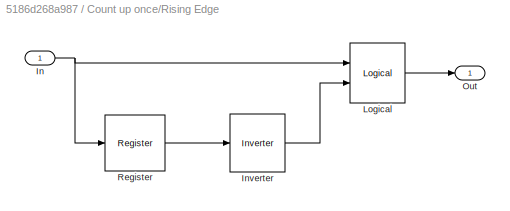
BLOCK [SubSystem] Count up once/Rising Edge
  FunctionWithSeparateData = off
  MaskHideContents = off
  MinAlgLoopOccurrences = off
  Opaque = off
  Ports = [1, 1]
  PropExecContextOutsideSubsystem = off
  RTWSystemCode = Auto
  RequestExecContextInheritance = off
BLOCK [Inport] Count up once/Rising Edge/In
  IconDisplay = Port number
BLOCK [Reference] Count up once/Rising Edge/Inverter  REF=xbsIndex_r4/Inverter
  Ports = [1, 1]
  SourceBlock = xbsIndex_r4/Inverter
  SourceType = Xilinx Inverter Block
  block_type = inv
  block_version = 10.1.3
  dbl_ovrd = off
  en = off
  has_advanced_control = 0
  infoedit = Bitwise logical negation (one's complement) operator.
  latency = 0
  sg_icon_stat = 55,58,1,1,white,blue,0,267846e5,right,,[ ],[ ]
  sg_mask_display = fprintf('','COMMENT: begin icon graphics');\npatch([0 55 55 0 0 ],[0 0 58 58 0 ],[0.77 0.82 0.91 ]);\nplot([0 55 55 0 0 ],[0 0 58 58 0 ]);\npatch([11.425 21.54 28.54 35.54 42.54 28.54 18.425 11.425 ],[36.77 36.77 43.77 36.77 43.77 43.77 43.77 36.77 ],[1 1 1 ]);\npatch([18.425 28.54 21.54 11.425 18.425 ],[29.77 29.77 36.77 36.77 29.77 ],[0.931 0.946 0.973 ]);\npatch([11.425 21.54 28.54 18.425 11.425 ],[...<+314ch>
  sggui_pos = 20,20,348,251
  xl_area = [0,0,0,0,0,0,0]
  xl_use_area = off
BLOCK [Reference] Count up once/Rising Edge/Logical  REF=xbsIndex_r4/Logical
  Ports = [2, 1]
  SourceBlock = xbsIndex_r4/Logical
  SourceType = Xilinx Logical Block Block
  align_bp = on
  arith_type = Unsigned
  bin_pt = 0
  block_type = logical
  block_version = 10.1.3
  dbl_ovrd = off
  en = off
  has_advanced_control = 0
  inputs = 2
  latency = 0
  logical_function = AND
  n_bits = 16
  precision = Full
  sg_icon_stat = 55,60,2,1,white,blue,0,83a4b621,right,,[ ],[ ]
  sg_mask_display = fprintf('','COMMENT: begin icon graphics');\npatch([0 55 55 0 0 ],[0 0 60 60 0 ],[0.77 0.82 0.91 ]);\nplot([0 55 55 0 0 ],[0 0 60 60 0 ]);\npatch([11.425 21.54 28.54 35.54 42.54 28.54 18.425 11.425 ],[37.77 37.77 44.77 37.77 44.77 44.77 44.77 37.77 ],[1 1 1 ]);\npatch([18.425 28.54 21.54 11.425 18.425 ],[30.77 30.77 37.77 37.77 30.77 ],[0.931 0.946 0.973 ]);\npatch([11.425 21.54 28.54 18.425 11.425 ],[...<+315ch>
  sggui_pos = 20,20,348,261
  xl_area = [0,0,0,0,0,0,0]
  xl_use_area = off
BLOCK [Outport] Count up once/Rising Edge/Out
  IconDisplay = Port number
BLOCK [Reference] Count up once/Rising Edge/Register  REF=xbsIndex_r4/Register
  Ports = [1, 1]
  SourceBlock = xbsIndex_r4/Register
  SourceType = Xilinx Register Block
  block_type = register
  block_version = 10.1.3
  dbl_ovrd = off
  en = off
  has_advanced_control = 0
  init = 0
  rst = off
  sg_icon_stat = 60,56,1,1,white,blue,0,c80657c5,right,,[ ],[ ]
  sg_mask_display = fprintf('','COMMENT: begin icon graphics');\npatch([0 60 60 0 0 ],[0 0 56 56 0 ],[0.77 0.82 0.91 ]);\nplot([0 60 60 0 0 ],[0 0 56 56 0 ]);\npatch([12.2 23.76 31.76 39.76 47.76 31.76 20.2 12.2 ],[36.88 36.88 44.88 36.88 44.88 44.88 44.88 36.88 ],[1 1 1 ]);\npatch([20.2 31.76 23.76 12.2 20.2 ],[28.88 28.88 36.88 36.88 28.88 ],[0.931 0.946 0.973 ]);\npatch([12.2 23.76 31.76 20.2 12.2 ],[20.88 20.88 28.88 ...<+391ch>
  sggui_pos = 20,20,348,193
  xl_area = [0,0,0,0,0,0,0]
  xl_use_area = off
BLOCK [Reference] Count up once/Slice1  REF=xbsIndex_r4/Slice
  Ports = [1, 1]
  SourceBlock = xbsIndex_r4/Slice
  SourceType = Xilinx Bit Slice Extractor Block
  base0 = LSB of Input
  base1 = MSB of Input
  bit0 = 0
  bit1 = 0
  block_type = slice
  block_version = 10.1.3
  boolean_output = on
  dbl_ovrd = off
  has_advanced_control = 0
  infoedit = Extracts a given range of bits from each input sample and presents it at the output.  The output type is ordinarily unsigned with binary point at zero, but can be Boolean when the slice is one bit wide.<P><P>Hardware notes: In hardware this block costs nothing.
  mode = Lower Bit Location + Width
  nbits = 1
  sg_icon_stat = 60,30,1,1,white,blue,0,1fd851a7,right,,[ ],[ ]
  sggui_pos = 20,20,449,376
BLOCK [Reference] Count up once/Write Count  REF=xbsIndex_r4/Counter
  Ports = [2, 1]
  SourceBlock = xbsIndex_r4/Counter
  SourceType = Xilinx Counter Block
  arith_type = Unsigned
  bin_pt = 0
  block_type = counter
  block_version = 10.1.3
  cnt_by_val = 1
  cnt_to = Inf
  cnt_type = Free Running
  dbl_ovrd = off
  en = on
  explicit_period = on
  has_advanced_control = 0
  implementation = Fabric
  infoedit = Hardware notes: Free running counters are the least expensive in hardware.  A count limited counter is implemented by combining a counter with a comparator.
  load_pin = off
  n_bits = 19
  operation = Up
  period = fix(250000/str2num(get_param('radarDFT/sampfreq(kHz)','value')))
  rst = on
  sg_icon_stat = 60,60,2,1,white,blue,0,ae3608d6,right,,[ ],[ ]
  sg_mask_display = fprintf('','COMMENT: begin icon graphics');\npatch([0 60 60 0 0 ],[0 0 60 60 0 ],[0.77 0.82 0.91 ]);\nplot([0 60 60 0 0 ],[0 0 60 60 0 ]);\npatch([12.2 23.76 31.76 39.76 47.76 31.76 20.2 12.2 ],[38.88 38.88 46.88 38.88 46.88 46.88 46.88 38.88 ],[1 1 1 ]);\npatch([20.2 31.76 23.76 12.2 20.2 ],[30.88 30.88 38.88 38.88 30.88 ],[0.931 0.946 0.973 ]);\npatch([12.2 23.76 31.76 20.2 12.2 ],[22.88 22.88 30.88 ...<+408ch>
  sggui_pos = 1591,89,451,765
  start_count = 0
  use_behavioral_HDL = off
  use_rpm = off
  xl_area = [0,0,0,0,0,0,0]
  xl_use_area = off
BLOCK [Outport] Count up once/addr
  IconDisplay = Port number
BLOCK [Inport] Count up once/start
  IconDisplay = Port number
BLOCK [Outport] Count up once/we
  IconDisplay = Port number
  Port = 2
BLOCK [Reference] Counter  REF=xbsIndex_r4/Counter
  Ports = [0, 1]
  SourceBlock = xbsIndex_r4/Counter
  SourceType = Xilinx Counter Block
  arith_type = Unsigned
  bin_pt = 0
  block_type = counter
  cnt_by_val = 1
  cnt_to = Inf
  cnt_type = Free Running
  dbl_ovrd = off
  en = off
  explicit_period = on
  has_advanced_control = 0
  implementation = Fabric
  infoedit = Hardware notes: Free running counters are the least expensive in hardware.  A count limited counter is implemented by combining a counter with a comparator.
  load_pin = off
  n_bits = 8
  operation = Up
  period = 1
  rst = off
  sg_icon_stat = 60,60,0,1,white,blue,0,7ac47ef5,right,,[ ],[ ]
  sg_mask_display = fprintf('','COMMENT: begin icon graphics');\npatch([0 60 60 0 0 ],[0 0 60 60 0 ],[0.77 0.82 0.91 ]);\nplot([0 60 60 0 0 ],[0 0 60 60 0 ]);\npatch([12.2 23.76 31.76 39.76 47.76 31.76 20.2 12.2 ],[38.88 38.88 46.88 38.88 46.88 46.88 46.88 38.88 ],[1 1 1 ]);\npatch([20.2 31.76 23.76 12.2 20.2 ],[30.88 30.88 38.88 38.88 30.88 ],[0.931 0.946 0.973 ]);\npatch([12.2 23.76 31.76 20.2 12.2 ],[22.88 22.88 30.88 ...<+321ch>
  sggui_pos = 11,42,369,726
  start_count = 0
  use_behavioral_HDL = off
  xl_area = [0,0,0,0,0,0,0]
  xl_use_area = off
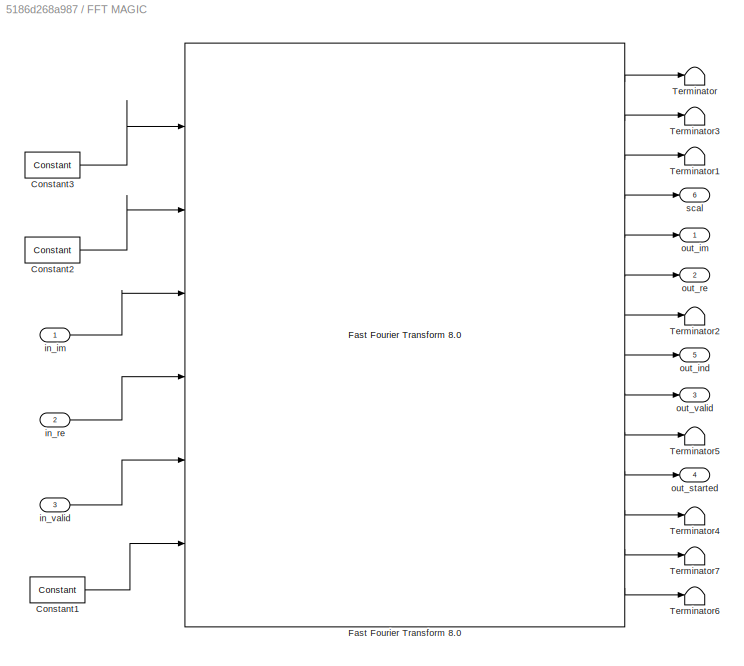
BLOCK [SubSystem] FFT MAGIC
  FunctionWithSeparateData = off
  MaskHideContents = off
  MinAlgLoopOccurrences = off
  Opaque = off
  Ports = [3, 6]
  PropExecContextOutsideSubsystem = off
  RTWSystemCode = Auto
  RequestExecContextInheritance = off
BLOCK [Reference] FFT MAGIC/Constant1  REF=xbsIndex_r4/Constant
  Ports = [0, 1]
  SourceBlock = xbsIndex_r4/Constant
  SourceType = Xilinx Constant Block Block
  arith_type = Boolean
  bin_pt = 0
  block_type = constant
  carry = CIN
  const = 0
  dbl_ovrd = off
  dsp48_infoedit = The use of this block for DSP48 instructions is deprecated.  Please use the Opmode block.
  equ = P=C
  exp_width = 8
  explicit_period = off
  frac_width = 24
  gui_display_data_type = Boolean
  has_advanced_control = 0
  inp1 = P
  inp2 = PCIN>>17
  n_bits = 1
  opr = +
  opselect = C
  period = 1
  preci_type = Single
  sg_icon_stat = 55,26,0,1,white,blue,0,bf4ddd8b,right,,[ ],[ ]
  sggui_pos = 146,152,375,476
BLOCK [Reference] FFT MAGIC/Constant2  REF=xbsIndex_r4/Constant
  Ports = [0, 1]
  SourceBlock = xbsIndex_r4/Constant
  SourceType = Xilinx Constant Block Block
  arith_type = Boolean
  bin_pt = 0
  block_type = constant
  carry = CIN
  const = 1
  dbl_ovrd = off
  dsp48_infoedit = The use of this block for DSP48 instructions is deprecated.  Please use the Opmode block.
  equ = P=C
  exp_width = 8
  explicit_period = off
  frac_width = 24
  gui_display_data_type = Boolean
  has_advanced_control = 0
  inp1 = P
  inp2 = PCIN>>17
  n_bits = 1
  opr = +
  opselect = C
  period = 1
  preci_type = Single
  sg_icon_stat = 55,26,0,1,white,blue,0,1c72b5be,right,,[ ],[ ]
  sggui_pos = 128,136,375,476
BLOCK [Reference] FFT MAGIC/Constant3  REF=xbsIndex_r4/Constant
  Ports = [0, 1]
  SourceBlock = xbsIndex_r4/Constant
  SourceType = Xilinx Constant Block Block
  arith_type = Unsigned
  bin_pt = 0
  block_type = constant
  carry = CIN
  const = 1
  dbl_ovrd = off
  dsp48_infoedit = The use of this block for DSP48 instructions is deprecated.  Please use the Opmode block.
  equ = P=C
  exp_width = 8
  explicit_period = off
  frac_width = 24
  gui_display_data_type = Fixed-point
  has_advanced_control = 0
  inp1 = P
  inp2 = PCIN>>17
  n_bits = 1
  opr = +
  opselect = C
  period = 1
  preci_type = Single
  sg_icon_stat = 55,26,0,1,white,blue,0,1c72b5be,right,,[ ],[ ]
  sggui_pos = 137,144,375,476
BLOCK [Reference] FFT MAGIC/Fast Fourier Transform 8.0   REF=xbsIndex_r4/Fast Fourier Transform 8.0 
  Ports = [6, 14]
  SourceBlock = xbsIndex_r4/Fast Fourier Transform 8.0
  SourceType = Xilinx Fast Fourier Transform 8.0  Block
  aclken = off
  aresetn = off
  block_type = xfft_v8_0
  butterfly_type = use_luts
  channels = 1
  complex_mult_type = use_mults_resources
  cyclic_prefix_insertion = off
  dsptool_ready = true
  has_advanced_control = 0
  implementation_options = pipelined_streaming_io
  input_ordering = natural_order
  input_width = 16
  ip_name = Fast Fourier Transform
  ip_version = 8.0
  ipcore_usecache = true
  ipcore_useipmodelcache = true
  memory_options_data = block_ram
  memory_options_hybrid = off
  memory_options_phase_factors = block_ram
  memory_options_reorder = block_ram
  number_of_stages_using_block_ram_for_data_and_phase_factors = 0
  output_ordering = natural_order
  ovflo = off
  phase_factor_width = 12
  port_translation_map = { 'aclken' => 'en', 'aresetn' => 'rst'}
  rounding_modes = convergent_rounding
  run_time_configurable_transform_length = off
  scaling_options = block_floating_point
  sg_icon_stat = 440,584,6,14,white,blue,0,1273a53e,right,,[2 2 3 3 3 3 ],[2 3 4 4 5 5 5 5 5 5 1 1 1 1 ]
  sg_mask_display = fprintf('','COMMENT: begin icon graphics');\npatch([0 0 5 5 ],[559 400 400 559 ],[6.025000e-01 6.400000e-01 7.075000e-01 ]);\npatch([0 0 5 5 ],[369 20 20 369 ],[4.350000e-01 4.600000e-01 5.050000e-01 ]);\npatch([435 435 440 440 ],[566 538 538 566 ],[6.025000e-01 6.400000e-01 7.075000e-01 ]);\npatch([435 435 440 440 ],[526 498 498 526 ],[4.350000e-01 4.600000e-01 5.050000e-01 ]);\npatch([435 435 440 440...<+2296ch>
  sggui_pos = 734,84,806,684
  target_clock_frequency = 100
  target_data_throughput = 50
  throttle_scheme = realtime
  transform_length = 256
  trim_axipin_name = off
  wrapper_available = true
  xk_index = on
  xl_area = [0,0,0,0,0,0,0]
  xl_use_area = off
BLOCK [Terminator] FFT MAGIC/Terminator
BLOCK [Terminator] FFT MAGIC/Terminator1
BLOCK [Terminator] FFT MAGIC/Terminator2
BLOCK [Terminator] FFT MAGIC/Terminator3
BLOCK [Terminator] FFT MAGIC/Terminator4
BLOCK [Terminator] FFT MAGIC/Terminator5
BLOCK [Terminator] FFT MAGIC/Terminator6
BLOCK [Terminator] FFT MAGIC/Terminator7
BLOCK [Inport] FFT MAGIC/in_im
  IconDisplay = Port number
BLOCK [Inport] FFT MAGIC/in_re
  IconDisplay = Port number
  Port = 2
BLOCK [Inport] FFT MAGIC/in_valid
  IconDisplay = Port number
  Port = 3
BLOCK [Outport] FFT MAGIC/out_im
  IconDisplay = Port number
BLOCK [Outport] FFT MAGIC/out_ind
  IconDisplay = Port number
  Port = 5
BLOCK [Outport] FFT MAGIC/out_re
  IconDisplay = Port number
  Port = 2
BLOCK [Outport] FFT MAGIC/out_started
  IconDisplay = Port number
  Port = 4
BLOCK [Outport] FFT MAGIC/out_valid
  IconDisplay = Port number
  Port = 3
BLOCK [Outport] FFT MAGIC/scal
  IconDisplay = Port number
  Port = 6
BLOCK [Reference] FMC111 Control  REF=mbee4_library/FMC111 Control
  Ports = []
  SourceBlock = mbee4_library/FMC111 Control
  SourceType = FMC111 Control
  Tag = xps:fmc111_ctrl
  board_type = FMC111
  sample_period = 1
  update = off
BLOCK [Reference] FMC111 RX Channel1  REF=mbee4_library/FMC111 RX Channel
  Ports = [4, 4]
  SourceBlock = mbee4_library/FMC111 RX Channel
  SourceType = FMC111 RX Channel
  Tag = xps:fmc111_rx
  arith_type = Signed
  bin_pt = 0
  bitwidth = 14
  channel_number = 1
  sample_period = 1
  update = off
BLOCK [Reference] Gateway Out  REF=xbsIndex_r4/Gateway Out
  DACChannel = '1'
  LOCs = {}
  Ports = [1, 1]
  SourceBlock = xbsIndex_r4/Gateway Out
  SourceType = Xilinx Gateway Out Block
  UseAsDAC = off
  block_type = gatewayout
  has_advanced_control = 0
  hdl_port = on
  infoedit = Gateway out block.  Converts Xilinx fixed-point or floating-point type inputs into ouputs of type Simulink integer, single, double, or fixed-point.<br><br>Hardware notes:  In hardware these blocks become top level output ports or are discarded, depending on how they are configured.  <repeated x6 — deduplicated; at blocks: Gateway Out, Gateway Out1, Gateway Out2, Gateway Out3, Gateway Out4, Gateway Out5>
  inherit_from_input = off
  locs_specified = off
  sg_icon_stat = 60,20,1,1,white,yellow,1,cc31b7ac,right,,[ ],[ ]
  sg_mask_display = fprintf('','COMMENT: begin icon graphics');\npatch([0 60 60 0 0 ],[0 0 20 20 0 ],[0.95 0.93 0.65 ]);\nplot([0 60 60 0 0 ],[0 0 20 20 0 ]);\npatch([25.55 28.44 30.44 32.44 34.44 30.44 27.55 25.55 ],[12.22 12.22 14.22 12.22 14.22 14.22 14.22 12.22 ],[1 1 1 ]);\npatch([27.55 30.44 28.44 25.55 27.55 ],[10.22 10.22 12.22 12.22 10.22 ],[0.985 0.979 0.895 ]);\npatch([25.55 28.44 30.44 27.55 25.55 ],[8.22 8.22...<+384ch>  <repeated x6 — deduplicated; at blocks: Gateway Out, Gateway Out1, Gateway Out2, Gateway Out3, Gateway Out4, Gateway Out5>
  sggui_pos = -1,-1,-1,-1
  timing_constraint = None
  xl_area = [0,0,0,0,0,0,0]
  xl_use_area = off
BLOCK [Reference] Gateway Out1  REF=xbsIndex_r4/Gateway Out
  DACChannel = '1'
  LOCs = {}
  Ports = [1, 1]
  SourceBlock = xbsIndex_r4/Gateway Out
  SourceType = Xilinx Gateway Out Block
  UseAsDAC = off
  block_type = gatewayout
  has_advanced_control = 0
  hdl_port = on
  inherit_from_input = off
  locs_specified = off
  sg_icon_stat = 60,20,1,1,white,yellow,1,cc31b7ac,right,,[ ],[ ]
  sggui_pos = -1,-1,-1,-1
  timing_constraint = None
  xl_area = [0,0,0,0,0,0,0]
  xl_use_area = off
BLOCK [Reference] Gateway Out2  REF=xbsIndex_r4/Gateway Out
  DACChannel = '1'
  LOCs = {}
  Ports = [1, 1]
  SourceBlock = xbsIndex_r4/Gateway Out
  SourceType = Xilinx Gateway Out Block
  UseAsDAC = off
  block_type = gatewayout
  has_advanced_control = 0
  hdl_port = on
  inherit_from_input = off
  locs_specified = off
  sg_icon_stat = 60,20,1,1,white,yellow,1,cc31b7ac,right,,[ ],[ ]
  sggui_pos = 11,22,368,627
  timing_constraint = None
  xl_area = [0,0,0,0,0,0,0]
  xl_use_area = off
BLOCK [Reference] Gateway Out3  REF=xbsIndex_r4/Gateway Out
  DACChannel = '1'
  LOCs = {}
  Ports = [1, 1]
  SourceBlock = xbsIndex_r4/Gateway Out
  SourceType = Xilinx Gateway Out Block
  UseAsDAC = off
  block_type = gatewayout
  has_advanced_control = 0
  hdl_port = on
  inherit_from_input = off
  locs_specified = off
  sg_icon_stat = 60,20,1,1,white,yellow,1,cc31b7ac,right,,[ ],[ ]
  sggui_pos = -1,-1,-1,-1
  timing_constraint = None
  xl_area = [0,0,0,0,0,0,0]
  xl_use_area = off
BLOCK [Reference] Gateway Out4  REF=xbsIndex_r4/Gateway Out
  DACChannel = '1'
  LOCs = {}
  Ports = [1, 1]
  SourceBlock = xbsIndex_r4/Gateway Out
  SourceType = Xilinx Gateway Out Block
  UseAsDAC = off
  block_type = gatewayout
  has_advanced_control = 0
  hdl_port = on
  inherit_from_input = off
  locs_specified = off
  sg_icon_stat = 60,20,1,1,white,yellow,1,cc31b7ac,right,,[ ],[ ]
  sggui_pos = -1,-1,-1,-1
  timing_constraint = None
  xl_area = [0,0,0,0,0,0,0]
  xl_use_area = off
BLOCK [Reference] Gateway Out5  REF=xbsIndex_r4/Gateway Out
  DACChannel = '1'
  LOCs = {}
  Ports = [1, 1]
  SourceBlock = xbsIndex_r4/Gateway Out
  SourceType = Xilinx Gateway Out Block
  UseAsDAC = off
  block_type = gatewayout
  has_advanced_control = 0
  hdl_port = on
  inherit_from_input = off
  locs_specified = off
  sg_icon_stat = 60,20,1,1,white,yellow,1,cc31b7ac,right,,[ ],[ ]
  sggui_pos = 2,22,368,627
  timing_constraint = None
  xl_area = [0,0,0,0,0,0,0]
  xl_use_area = off
BLOCK [Reference] Mult  REF=xbsIndex_r4/Mult
  Ports = [2, 1]
  SourceBlock = xbsIndex_r4/Mult
  SourceType = Xilinx Multiplier Block
  arith_type = Signed  (2's comp)
  bin_pt = 14
  block_type = mult
  dbl_ovrd = off
  en = off
  has_advanced_control = 0
  infoedit = Hardware notes: To check for the optimum internal pipeline stages of the dedicated multiplier you must select 'Test for optimum pipelining'.<br><br>Optimization Goal: For implementation into device fabric (LUTs), the Speed or Area optimization will take effect only if it's supported by IP for the particular device family. Otherwise, the results will be identical regardless of the selection.  <repeated x4 — deduplicated; at blocks: Mult, Mult1, Mult6, Mult7>
  latency = 3
  n_bits = 16
  opt = Speed
  optimum_pipeline = off
  overflow = Wrap
  pipeline = on
  placement_style = Triangular
  precision = Full
  quantization = Truncate
  sg_icon_stat = 55,55,2,1,white,blue,0,7028354c,right,,[ ],[ ]
  sg_mask_display = fprintf('','COMMENT: begin icon graphics');\npatch([0 55 55 0 0 ],[0 0 55 55 0 ],[0.77 0.82 0.91 ]);\nplot([0 55 55 0 0 ],[0 0 55 55 0 ]);\npatch([11.425 21.54 28.54 35.54 42.54 28.54 18.425 11.425 ],[34.77 34.77 41.77 34.77 41.77 41.77 41.77 34.77 ],[1 1 1 ]);\npatch([18.425 28.54 21.54 11.425 18.425 ],[27.77 27.77 34.77 34.77 27.77 ],[0.931 0.946 0.973 ]);\npatch([11.425 21.54 28.54 18.425 11.425 ],[...<+522ch>  <repeated x4 — deduplicated; at blocks: Mult, Mult1, Mult6, Mult7>
  sggui_pos = 832,92,369,636
  use_behavioral_HDL = off
  use_embedded = on
  use_rpm = on
  xl_area = [0,0,0,0,0,0,0]
  xl_use_area = off
BLOCK [Reference] Mult1  REF=xbsIndex_r4/Mult
  Ports = [2, 1]
  SourceBlock = xbsIndex_r4/Mult
  SourceType = Xilinx Multiplier Block
  arith_type = Signed  (2's comp)
  bin_pt = 14
  block_type = mult
  dbl_ovrd = off
  en = off
  has_advanced_control = 0
  latency = 3
  n_bits = 16
  opt = Speed
  optimum_pipeline = off
  overflow = Wrap
  pipeline = on
  placement_style = Triangular
  precision = Full
  quantization = Truncate
  sg_icon_stat = 55,55,2,1,white,blue,0,7028354c,right,,[ ],[ ]
  sggui_pos = 841,100,369,636
  use_behavioral_HDL = off
  use_embedded = on
  use_rpm = on
  xl_area = [0,0,0,0,0,0,0]
  xl_use_area = off
BLOCK [Reference] ROM  REF=xbsIndex_r4/ROM
  Ports = [1, 1]
  SourceBlock = xbsIndex_r4/ROM
  SourceType = Xilinx Single Port Read-Only Memory Block
  arith_type = Signed  (2's comp)
  bin_pt = 14
  block_type = sprom
  dbl_ovrd = off
  depth = 256
  distributed_mem = Distributed memory
  en = off
  exp_width = 8
  frac_width = 24
  gui_display_data_type = Fixed-point
  has_advanced_control = 0
  initVector = 0.5*(1-cos(2*pi*(0:255)/255))
  init_reg = 0
  latency = 1
  n_bits = 16
  optimize = Area
  preci_type = Single
  rst = off
  sg_icon_stat = 60,56,1,1,white,blue,0,bbc23d60,right,,[ ],[ ]
  sg_mask_display = fprintf('','COMMENT: begin icon graphics');\npatch([0 60 60 0 0 ],[0 0 56 56 0 ],[0.77 0.82 0.91 ]);\nplot([0 60 60 0 0 ],[0 0 56 56 0 ]);\npatch([12.2 23.76 31.76 39.76 47.76 31.76 20.2 12.2 ],[36.88 36.88 44.88 36.88 44.88 44.88 44.88 36.88 ],[1 1 1 ]);\npatch([20.2 31.76 23.76 12.2 20.2 ],[28.88 28.88 36.88 36.88 28.88 ],[0.931 0.946 0.973 ]);\npatch([12.2 23.76 31.76 20.2 12.2 ],[20.88 20.88 28.88 ...<+352ch>
  sggui_pos = 607,22,369,348
  use_rpm = on
  xl_area = [0,0,0,0,0,0,0]
  xl_use_area = off
BLOCK [Reference] Reinterpret11  REF=xbsIndex_r4/Reinterpret
  Ports = [1, 1]
  SourceBlock = xbsIndex_r4/Reinterpret
  SourceType = Xilinx Type Reinterpreter Block
  arith_type = Signed  (2's comp)
  bin_pt = 13
  block_type = reinterpret
  force_arith_type = on
  force_bin_pt = on
  has_advanced_control = 0
  infoedit = Changes signal type without altering the binary representation.   You can change the signal between signed and unsigned, and relocate the binary point.<br><br>Hardware notes: In hardware this block costs nothing.<br><br>Example:  Suppose the input is 6 bits wide, signed, with 2 fractional bits, and the output is forced to unsigned with 0 fractional bits.  Then an input of -2.0 (1110.00 in binary 2...<+58ch>  <repeated x8 — deduplicated; at blocks: Reinterpret11, Reinterpret12, Reinterpret1, Reinterpret14, Reinterpret15, Reinterpret2, Reinterpret20, Reinterpret3>
  sg_icon_stat = 60,38,1,1,white,blue,0,6b04d0b0,right,,[ ],[ ]
  sg_mask_display = fprintf('','COMMENT: begin icon graphics');\npatch([0 60 60 0 0 ],[0 0 38 38 0 ],[0.77 0.82 0.91 ]);\nplot([0 60 60 0 0 ],[0 0 38 38 0 ]);\npatch([18.875 26.1 31.1 36.1 41.1 31.1 23.875 18.875 ],[24.55 24.55 29.55 24.55 29.55 29.55 29.55 24.55 ],[1 1 1 ]);\npatch([23.875 31.1 26.1 18.875 23.875 ],[19.55 19.55 24.55 24.55 19.55 ],[0.931 0.946 0.973 ]);\npatch([18.875 26.1 31.1 23.875 18.875 ],[14.55 14....<+305ch>
  sggui_pos = 1052,106,400,381
BLOCK [Reference] Reinterpret12  REF=xbsIndex_r4/Reinterpret
  Ports = [1, 1]
  SourceBlock = xbsIndex_r4/Reinterpret
  SourceType = Xilinx Type Reinterpreter Block
  arith_type = Signed  (2's comp)
  bin_pt = 13
  block_type = reinterpret
  force_arith_type = on
  force_bin_pt = on
  has_advanced_control = 0
  sg_icon_stat = 60,38,1,1,white,blue,0,6b04d0b0,right,,[ ],[ ]
  sg_mask_display = fprintf('','COMMENT: begin icon graphics');\npatch([0 60 60 0 0 ],[0 0 38 38 0 ],[0.77 0.82 0.91 ]);\nplot([0 60 60 0 0 ],[0 0 38 38 0 ]);\npatch([18.875 26.1 31.1 36.1 41.1 31.1 23.875 18.875 ],[24.55 24.55 29.55 24.55 29.55 29.55 29.55 24.55 ],[1 1 1 ]);\npatch([23.875 31.1 26.1 18.875 23.875 ],[19.55 19.55 24.55 24.55 19.55 ],[0.931 0.946 0.973 ]);\npatch([18.875 26.1 31.1 23.875 18.875 ],[14.55 14....<+305ch>
  sggui_pos = 207,93,400,381
BLOCK [Reference] Relational  REF=xbsIndex_r4/Relational
  Ports = [2, 1]
  SourceBlock = xbsIndex_r4/Relational
  SourceType = Xilinx Arithmetic Relational Operator Block
  block_type = relational
  dbl_ovrd = off
  en = off
  has_advanced_control = 0
  latency = 0
  mode = a=b
  sg_icon_stat = 55,56,2,1,white,blue,0,2a81ff49,right,,[ ],[ ]
  sggui_pos = 942,232,369,202
  xl_area = [0,0,0,0,0,0,0]
  xl_use_area = off
BLOCK [Reference] Slice  REF=xbsIndex_r4/Slice
  Ports = [1, 1]
  SourceBlock = xbsIndex_r4/Slice
  SourceType = Xilinx Bit Slice Extractor Block
  base0 = LSB of Input
  base1 = MSB of Input
  bit0 = 14
  bit1 = 0
  block_type = slice
  boolean_output = off
  dbl_ovrd = off
  has_advanced_control = 0
  mode = Lower Bit Location + Width
  nbits = 14
  sg_icon_stat = 60,30,1,1,white,blue,0,1fd851a7,right,,[ ],[ ]
  sggui_pos = 982,130,511,471
BLOCK [Reference] Slice1  REF=xbsIndex_r4/Slice
  Ports = [1, 1]
  SourceBlock = xbsIndex_r4/Slice
  SourceType = Xilinx Bit Slice Extractor Block
  base0 = LSB of Input
  base1 = MSB of Input
  bit0 = 14
  bit1 = 0
  block_type = slice
  boolean_output = off
  dbl_ovrd = off
  has_advanced_control = 0
  mode = Lower Bit Location + Width
  nbits = 14
  sg_icon_stat = 60,30,1,1,white,blue,0,1fd851a7,right,,[ ],[ ]
  sggui_pos = 982,130,511,471
BLOCK [Step] Step
  Commented = on
  SampleTime = 1
BLOCK [Terminator] Terminator
BLOCK [Terminator] Terminator1
BLOCK [Terminator] Terminator7
BLOCK [Terminator] Terminator8
BLOCK [ToWorkspace] To Workspace
  MaxDataPoints = inf
  Ports = [1]
  SampleTime = -1
  SaveFormat = Timeseries
  VariableName = Data_im
BLOCK [ToWorkspace] To Workspace1
  MaxDataPoints = inf
  Ports = [1]
  SampleTime = -1
  SaveFormat = Timeseries
  VariableName = Data_re
BLOCK [ToWorkspace] To Workspace2
  MaxDataPoints = inf
  Ports = [1]
  SampleTime = -1
  SaveFormat = Timeseries
  VariableName = T_Valid
BLOCK [ToWorkspace] To Workspace3
  MaxDataPoints = inf
  Ports = [1]
  SampleTime = -1
  SaveFormat = Timeseries
  VariableName = STARTED
BLOCK [ToWorkspace] To Workspace4
  MaxDataPoints = inf
  Ports = [1]
  SampleTime = -1
  SaveFormat = Timeseries
  VariableName = Data_ind
BLOCK [ToWorkspace] To Workspace5
  MaxDataPoints = inf
  Ports = [1]
  SampleTime = -1
  SaveFormat = Timeseries
  VariableName = scal
BLOCK [ToWorkspace] To Workspace6
  Commented = on
  MaxDataPoints = inf
  Ports = [1]
  SampleTime = -1
  VariableName = stepin
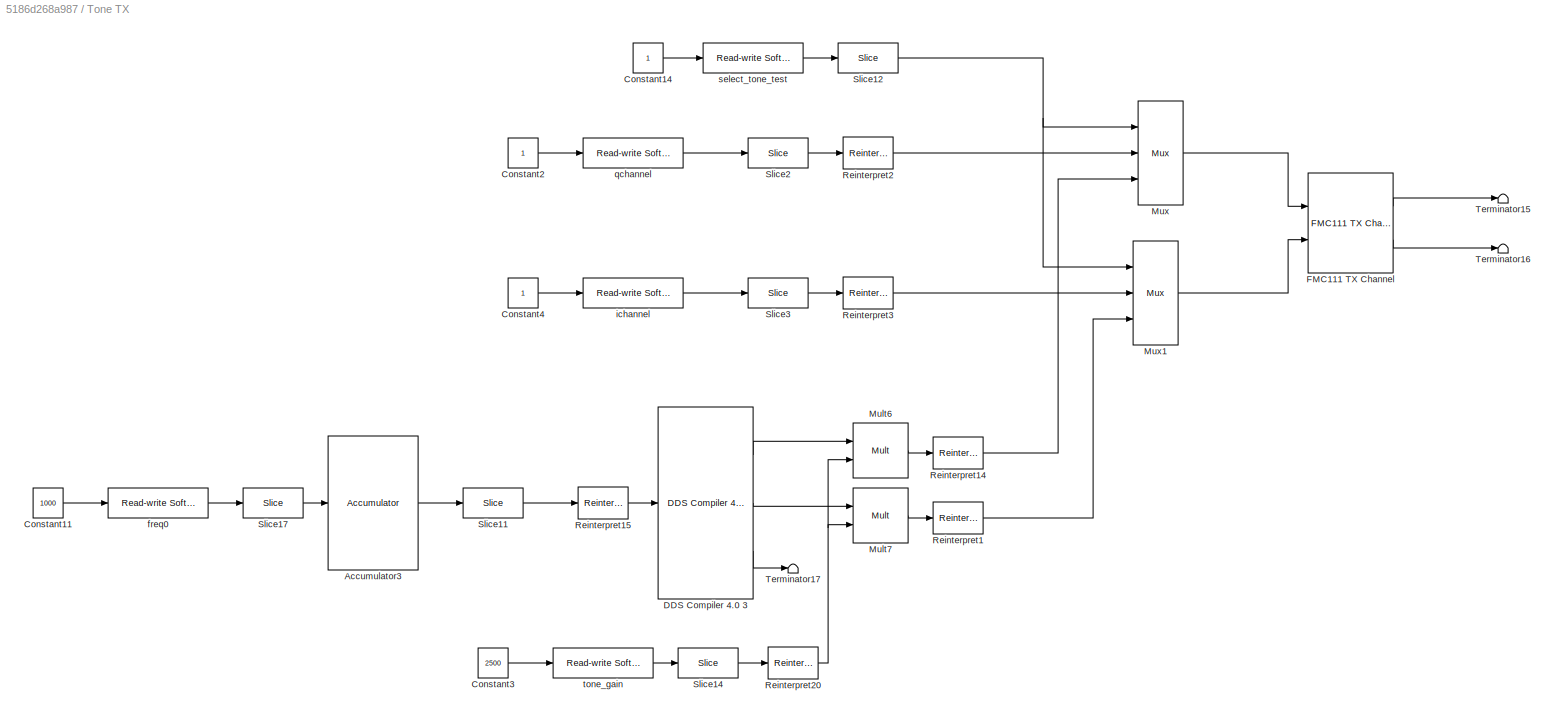
BLOCK [SubSystem] Tone TX
  FunctionWithSeparateData = off
  MaskHideContents = off
  MinAlgLoopOccurrences = off
  Opaque = off
  Ports = []
  PropExecContextOutsideSubsystem = off
  RTWSystemCode = Auto
  RequestExecContextInheritance = off
  VariantControl = Variant1
BLOCK [Reference] Tone TX/Accumulator3  REF=xbsIndex_r4/Accumulator
  Ports = [1, 1]
  SourceBlock = xbsIndex_r4/Accumulator
  SourceType = Xilinx Accumulator Block
  block_type = accum
  dbl_ovrd = off
  en = off
  has_advanced_control = 0
  hasbypass = on
  implementation = Fabric
  infoedit = Adder or subtracter-based accumulator.   Output type and binary point position match the input.<br><br>Hardware notes: When "Reinitialize with input 'b' on reset" is selected, the accumulator is forced to run at the system rate even if the input 'b' is running at a slower rate.
  infoeditControl = reset for floating point data type must be asserted for a minimum of 2 cycles
  latency = 0
  lsb = -100
  msb = 100
  msb_inp = 100
  n_bits = 24
  operation = Add
  overflow = Wrap
  rst = off
  scale = 1
  sg_icon_stat = 90,134,1,1,white,blue,0,47915e64,right,,[ ],[ ]
  sg_mask_display = fprintf('','COMMENT: begin icon graphics');\npatch([0 90 90 0 0 ],[0 0 134 134 0 ],[0.77 0.82 0.91 ]);\nplot([0 90 90 0 0 ],[0 0 134 134 0 ]);\npatch([18.3 35.64 47.64 59.64 71.64 47.64 30.3 18.3 ],[80.32 80.32 92.32 80.32 92.32 92.32 92.32 80.32 ],[1 1 1 ]);\npatch([30.3 47.64 35.64 18.3 30.3 ],[68.32 68.32 80.32 80.32 68.32 ],[0.931 0.946 0.973 ]);\npatch([18.3 35.64 47.64 30.3 18.3 ],[56.32 56.32 68...<+369ch>
  sggui_pos = 876,51,451,651
  use_behavioral_HDL = on
  xl_area = [0,0,0,0,0,0,0]
  xl_use_area = off
BLOCK [Constant] Tone TX/Constant11
  Value = 1000
BLOCK [Constant] Tone TX/Constant14
BLOCK [Constant] Tone TX/Constant2
BLOCK [Constant] Tone TX/Constant3
  Value = 2500
BLOCK [Constant] Tone TX/Constant4
BLOCK [Reference] Tone TX/DDS Compiler 4.0 3  REF=xbsIndex_r4/DDS Compiler 4.0 
  Ports = [1, 3]
  SourceBlock = xbsIndex_r4/DDS Compiler 4.0
  SourceType = Xilinx DDS Compiler 4.0 Block
  amplitude_mode = Full_Range
  block_type = dds_compiler_v4_0
  channel_pin = off
  channels = 1
  clock_enable = off
  dds_clock_rate = 100
  dsp48_use = Minimal
  dsptool_ready = true
  explicit_period = off
  frequency_resolution = 0.4
  gui_behaviour = Sysgen
  has_advanced_control = 0
  has_phase_out = on
  ip_name = DDS Compiler
  ip_version = 4.0
  ipcore_fpga_part = xlipgetpartsetting(gcb, {'virtex4', 'xc4vsx35', '-10', 'ff668'})
  ipcore_usecache = true
  ipcore_useipmodelcache = true
  ipcore_verbose = false
  ipcore_xco_need_fpga_part = true
  latency = 6
  latency_configuration = Auto
  memory_type = Distributed_ROM
  negative_cosine = off
  negative_sine = off
  noise_shaping = None
  optimization_goal = Auto
  output_frequency1 = 0
  output_frequency10 = 0
  output_frequency11 = 0
  output_frequency12 = 0
  output_frequency13 = 0
  output_frequency14 = 0
  output_frequency15 = 0
  output_frequency16 = 0
  output_frequency2 = 0
  output_frequency3 = 0
  output_frequency4 = 0
  output_frequency5 = 0
  output_frequency6 = 0
  output_frequency7 = 0
  output_frequency8 = 0
  output_frequency9 = 0
  output_selection = Sine_and_Cosine
  output_width = 16
  parameter_entry = Hardware_Parameters
  partspresent = SIN_COS_LUT_only
  period = 1
  phase_increment = Fixed
  phase_offset = None
  phase_offset_angles1 = 0
  phase_offset_angles10 = 0
  phase_offset_angles11 = 0
  phase_offset_angles12 = 0
  phase_offset_angles13 = 0
  phase_offset_angles14 = 0
  phase_offset_angles15 = 0
  phase_offset_angles16 = 0
  phase_offset_angles2 = 0
  phase_offset_angles3 = 0
  phase_offset_angles4 = 0
  phase_offset_angles5 = 0
  phase_offset_angles6 = 0
  phase_offset_angles7 = 0
  phase_offset_angles8 = 0
  phase_offset_angles9 = 0
  phase_width = 16
  pinc1 = '0'
  pinc10 = '0'
  pinc11 = '0'
  pinc12 = '0'
  pinc13 = '0'
  pinc14 = '0'
  pinc15 = '0'
  pinc16 = '0'
  pinc2 = '0'
  pinc3 = '0'
  pinc4 = '0'
  pinc5 = '0'
  pinc6 = '0'
  pinc7 = '0'
  pinc8 = '0'
  pinc9 = '0'
  poff1 = '0'
  poff10 = '0'
  poff11 = '0'
  poff12 = '0'
  poff13 = '0'
  poff14 = '0'
  poff15 = '0'
  poff16 = '0'
  poff2 = '0'
  poff3 = '0'
  poff4 = '0'
  poff5 = '0'
  poff6 = '0'
  poff7 = '0'
  poff8 = '0'
  poff9 = '0'
  por_mode = false
  port_translation_map = { 'ce' => 'en', 'sclr' => 'rst' }
  rdy = off
  rfd = off
  sclr_pin = off
  sg_icon_stat = 95,192,1,3,white,blue,0,6be80ec3,right,,[ ],[ ]
  sg_mask_display = fprintf('','COMMENT: begin icon graphics');\npatch([0 95 95 0 0 ],[0 0 192 192 0 ],[0.77 0.82 0.91 ]);\nplot([0 95 95 0 0 ],[0 0 192 192 0 ]);\npatch([18.075 36.86 49.86 62.86 75.86 49.86 31.075 18.075 ],[110.43 110.43 123.43 110.43 123.43 123.43 123.43 110.43 ],[1 1 1 ]);\npatch([31.075 49.86 36.86 18.075 31.075 ],[97.43 97.43 110.43 110.43 97.43 ],[0.931 0.946 0.973 ]);\npatch([18.075 36.86 49.86 31....<+492ch>
  sggui_pos = 796,22,501,656
  spurious_free_dynamic_range = 36
  wrapper_available = true
BLOCK [Reference] Tone TX/FMC111 TX Channel  REF=mbee4_library/FMC111 TX Channel
  Ports = [2, 2]
  SourceBlock = mbee4_library/FMC111 TX Channel
  SourceType = FMC111 TX Channel
  Tag = xps:fmc111_tx
  arith_type = Signed
  bin_pt = 0
  bitwidth = 16
  channel_number = 1
  sample_period = 1
  update = off
BLOCK [Reference] Tone TX/Mult6  REF=xbsIndex_r4/Mult
  Ports = [2, 1]
  SourceBlock = xbsIndex_r4/Mult
  SourceType = Xilinx Multiplier Block
  arith_type = Signed  (2's comp)
  bin_pt = 15
  block_type = mult
  dbl_ovrd = off
  en = off
  has_advanced_control = 0
  latency = 3
  n_bits = 16
  opt = Speed
  optimum_pipeline = off
  overflow = Saturate
  pipeline = on
  placement_style = Triangular
  precision = User Defined
  quantization = Round  (unbiased: +/- Inf)
  sg_icon_stat = 55,55,2,1,white,blue,0,7028354c,right,,[ ],[ ]
  sggui_pos = 885,41,451,669
  use_behavioral_HDL = off
  use_embedded = on
  use_rpm = on
  xl_area = [0,0,0,0,0,0,0]
  xl_use_area = off
BLOCK [Reference] Tone TX/Mult7  REF=xbsIndex_r4/Mult
  Ports = [2, 1]
  SourceBlock = xbsIndex_r4/Mult
  SourceType = Xilinx Multiplier Block
  arith_type = Signed  (2's comp)
  bin_pt = 15
  block_type = mult
  dbl_ovrd = off
  en = off
  has_advanced_control = 0
  latency = 3
  n_bits = 16
  opt = Speed
  optimum_pipeline = off
  overflow = Saturate
  pipeline = on
  placement_style = Triangular
  precision = User Defined
  quantization = Round  (unbiased: +/- Inf)
  sg_icon_stat = 55,55,2,1,white,blue,0,7028354c,right,,[ ],[ ]
  sggui_pos = 1015,83,451,669
  use_behavioral_HDL = off
  use_embedded = on
  use_rpm = on
  xl_area = [0,0,0,0,0,0,0]
  xl_use_area = off
BLOCK [Reference] Tone TX/Mux  REF=xbsIndex_r4/Mux
  Ports = [3, 1]
  SourceBlock = xbsIndex_r4/Mux
  SourceType = Xilinx Bus Multiplexer Block
  arith_type = Unsigned
  bin_pt = 14
  block_type = mux
  dbl_ovrd = off
  en = off
  has_advanced_control = 0
  inputs = 2
  latency = 0
  n_bits = 16
  overflow = Wrap
  precision = Full
  quantization = Truncate
  sg_icon_stat = 45,104,3,1,white,blue,3,eb98d690,right,,[ ],[ ]
  sggui_pos = 11,22,369,356
  xl_area = [0,0,0,0,0,0,0]
  xl_use_area = off
BLOCK [Reference] Tone TX/Mux1  REF=xbsIndex_r4/Mux
  Ports = [3, 1]
  SourceBlock = xbsIndex_r4/Mux
  SourceType = Xilinx Bus Multiplexer Block
  arith_type = Unsigned
  bin_pt = 14
  block_type = mux
  dbl_ovrd = off
  en = off
  has_advanced_control = 0
  inputs = 2
  latency = 0
  n_bits = 16
  overflow = Wrap
  precision = Full
  quantization = Truncate
  sg_icon_stat = 45,104,3,1,white,blue,3,eb98d690,right,,[ ],[ ]
  sggui_pos = 447,28,369,356
  xl_area = [0,0,0,0,0,0,0]
  xl_use_area = off
BLOCK [Reference] Tone TX/Reinterpret1  REF=xbsIndex_r4/Reinterpret
  Ports = [1, 1]
  SourceBlock = xbsIndex_r4/Reinterpret
  SourceType = Xilinx Type Reinterpreter Block
  arith_type = Signed  (2's comp)
  bin_pt = 0
  block_type = reinterpret
  force_arith_type = on
  force_bin_pt = on
  has_advanced_control = 0
  sg_icon_stat = 50,32,1,1,white,blue,0,6b04d0b0,right,,[ ],[ ]
  sg_mask_display = fprintf('','COMMENT: begin icon graphics');\npatch([0 50 50 0 0 ],[0 0 32 32 0 ],[0.77 0.82 0.91 ]);\nplot([0 50 50 0 0 ],[0 0 32 32 0 ]);\npatch([16.1 21.88 25.88 29.88 33.88 25.88 20.1 16.1 ],[20.44 20.44 24.44 20.44 24.44 24.44 24.44 20.44 ],[1 1 1 ]);\npatch([20.1 25.88 21.88 16.1 20.1 ],[16.44 16.44 20.44 20.44 16.44 ],[0.931 0.946 0.973 ]);\npatch([16.1 21.88 25.88 20.1 16.1 ],[12.44 12.44 16.44 ...<+294ch>  <repeated x6 — deduplicated; at blocks: Reinterpret1, Reinterpret14, Reinterpret15, Reinterpret2, Reinterpret20, Reinterpret3>
  sggui_pos = 400,302,400,381
BLOCK [Reference] Tone TX/Reinterpret14  REF=xbsIndex_r4/Reinterpret
  Ports = [1, 1]
  SourceBlock = xbsIndex_r4/Reinterpret
  SourceType = Xilinx Type Reinterpreter Block
  arith_type = Signed  (2's comp)
  bin_pt = 0
  block_type = reinterpret
  force_arith_type = on
  force_bin_pt = on
  has_advanced_control = 0
  sg_icon_stat = 50,32,1,1,white,blue,0,6b04d0b0,right,,[ ],[ ]
  sggui_pos = 400,302,400,381
BLOCK [Reference] Tone TX/Reinterpret15  REF=xbsIndex_r4/Reinterpret
  Ports = [1, 1]
  SourceBlock = xbsIndex_r4/Reinterpret
  SourceType = Xilinx Type Reinterpreter Block
  arith_type = Unsigned
  bin_pt = 16
  block_type = reinterpret
  force_arith_type = off
  force_bin_pt = on
  has_advanced_control = 0
  sg_icon_stat = 50,32,1,1,white,blue,0,6b04d0b0,right,,[ ],[ ]
  sggui_pos = -1,-1,-1,-1
BLOCK [Reference] Tone TX/Reinterpret2  REF=xbsIndex_r4/Reinterpret
  Ports = [1, 1]
  SourceBlock = xbsIndex_r4/Reinterpret
  SourceType = Xilinx Type Reinterpreter Block
  arith_type = Signed  (2's comp)
  bin_pt = 0
  block_type = reinterpret
  force_arith_type = on
  force_bin_pt = on
  has_advanced_control = 0
  sg_icon_stat = 50,32,1,1,white,blue,0,6b04d0b0,right,,[ ],[ ]
  sggui_pos = 400,302,400,381
BLOCK [Reference] Tone TX/Reinterpret20  REF=xbsIndex_r4/Reinterpret
  Ports = [1, 1]
  SourceBlock = xbsIndex_r4/Reinterpret
  SourceType = Xilinx Type Reinterpreter Block
  arith_type = Unsigned
  bin_pt = 11
  block_type = reinterpret
  force_arith_type = on
  force_bin_pt = on
  has_advanced_control = 0
  sg_icon_stat = 50,32,1,1,white,blue,0,6b04d0b0,right,,[ ],[ ]
  sggui_pos = 537,296,400,381
BLOCK [Reference] Tone TX/Reinterpret3  REF=xbsIndex_r4/Reinterpret
  Ports = [1, 1]
  SourceBlock = xbsIndex_r4/Reinterpret
  SourceType = Xilinx Type Reinterpreter Block
  arith_type = Signed  (2's comp)
  bin_pt = 0
  block_type = reinterpret
  force_arith_type = on
  force_bin_pt = on
  has_advanced_control = 0
  sg_icon_stat = 50,32,1,1,white,blue,0,6b04d0b0,right,,[ ],[ ]
  sggui_pos = 391,294,400,381
BLOCK [Reference] Tone TX/Slice11  REF=xbsIndex_r4/Slice
  Ports = [1, 1]
  SourceBlock = xbsIndex_r4/Slice
  SourceType = Xilinx Bit Slice Extractor Block
  base0 = LSB of Input
  base1 = MSB of Input
  bit0 = 0
  bit1 = 0
  block_type = slice
  boolean_output = off
  dbl_ovrd = off
  has_advanced_control = 0
  mode = Upper Bit Location + Width
  nbits = 16
  sg_icon_stat = 60,30,1,1,white,blue,0,1fd851a7,right,,[ ],[ ]
  sggui_pos = 20,45,591,503
BLOCK [Reference] Tone TX/Slice12  REF=xbsIndex_r4/Slice
  Ports = [1, 1]
  SourceBlock = xbsIndex_r4/Slice
  SourceType = Xilinx Bit Slice Extractor Block
  base0 = LSB of Input
  base1 = MSB of Input
  bit0 = 0
  bit1 = 0
  block_type = slice
  boolean_output = on
  dbl_ovrd = off
  has_advanced_control = 0
  mode = Lower Bit Location + Width
  nbits = 1
  sg_icon_stat = 60,30,1,1,white,blue,0,1fd851a7,right,,[ ],[ ]
  sggui_pos = 609,162,591,503
BLOCK [Reference] Tone TX/Slice14  REF=xbsIndex_r4/Slice
  Ports = [1, 1]
  SourceBlock = xbsIndex_r4/Slice
  SourceType = Xilinx Bit Slice Extractor Block
  base0 = LSB of Input
  base1 = MSB of Input
  bit0 = 0
  bit1 = 0
  block_type = slice
  boolean_output = off
  dbl_ovrd = off
  has_advanced_control = 0
  mode = Lower Bit Location + Width
  nbits = 12
  sg_icon_stat = 60,30,1,1,white,blue,0,1fd851a7,right,,[ ],[ ]
  sggui_pos = 553,137,591,503
BLOCK [Reference] Tone TX/Slice17  REF=xbsIndex_r4/Slice
  Ports = [1, 1]
  SourceBlock = xbsIndex_r4/Slice
  SourceType = Xilinx Bit Slice Extractor Block
  base0 = LSB of Input
  base1 = MSB of Input
  bit0 = 0
  bit1 = 0
  block_type = slice
  boolean_output = off
  dbl_ovrd = off
  has_advanced_control = 0
  mode = Lower Bit Location + Width
  nbits = 24
  sg_icon_stat = 60,30,1,1,white,blue,0,1fd851a7,right,,[ ],[ ]
  sggui_pos = 20,45,591,503
BLOCK [Reference] Tone TX/Slice2  REF=xbsIndex_r4/Slice
  Ports = [1, 1]
  SourceBlock = xbsIndex_r4/Slice
  SourceType = Xilinx Bit Slice Extractor Block
  base0 = LSB of Input
  base1 = MSB of Input
  bit0 = 0
  bit1 = 0
  block_type = slice
  boolean_output = off
  dbl_ovrd = off
  has_advanced_control = 0
  mode = Lower Bit Location + Width
  nbits = 16
  sg_icon_stat = 60,30,1,1,white,blue,0,1fd851a7,right,,[ ],[ ]
  sggui_pos = 2,29,591,503
BLOCK [Reference] Tone TX/Slice3  REF=xbsIndex_r4/Slice
  Ports = [1, 1]
  SourceBlock = xbsIndex_r4/Slice
  SourceType = Xilinx Bit Slice Extractor Block
  base0 = LSB of Input
  base1 = MSB of Input
  bit0 = 0
  bit1 = 0
  block_type = slice
  boolean_output = off
  dbl_ovrd = off
  has_advanced_control = 0
  mode = Lower Bit Location + Width
  nbits = 16
  sg_icon_stat = 60,30,1,1,white,blue,0,1fd851a7,right,,[ ],[ ]
  sggui_pos = 11,37,591,503
BLOCK [Terminator] Tone TX/Terminator15
BLOCK [Terminator] Tone TX/Terminator16
BLOCK [Terminator] Tone TX/Terminator17
BLOCK [Reference] Tone TX/freq0  REF=xps_library/Read-write Software Register  (lib defined in mdl_00b5cec29cd0, mdl_02ab6ecaa3d1, +5 more)
  Ports = [1, 1]
  SourceBlock = xps_library/Read-write Software Register
  SourceType = Read-write Software Register
  Tag = xps:sw_reg
  arith_type = Unsigned
  bin_pt = 0
  bitwidth = 32
  io_dir = From Processor
  sample_period = 1
  update = off
  use_strobe = off
BLOCK [Reference] Tone TX/ichannel  REF=xps_library/Read-write Software Register  (lib defined in mdl_00b5cec29cd0, mdl_02ab6ecaa3d1, +5 more)
  Ports = [1, 1]
  SourceBlock = xps_library/Read-write Software Register
  SourceType = Read-write Software Register
  Tag = xps:sw_reg
  arith_type = Unsigned
  bin_pt = 0
  bitwidth = 32
  io_dir = From Processor
  sample_period = 1
  update = off
  use_strobe = off
BLOCK [Reference] Tone TX/qchannel  REF=xps_library/Read-write Software Register  (lib defined in mdl_00b5cec29cd0, mdl_02ab6ecaa3d1, +5 more)
  Ports = [1, 1]
  SourceBlock = xps_library/Read-write Software Register
  SourceType = Read-write Software Register
  Tag = xps:sw_reg
  arith_type = Unsigned
  bin_pt = 0
  bitwidth = 32
  io_dir = From Processor
  sample_period = 1
  update = off
  use_strobe = off
BLOCK [Reference] Tone TX/select_tone_test  REF=xps_library/Read-write Software Register  (lib defined in mdl_00b5cec29cd0, mdl_02ab6ecaa3d1, +5 more)
  Ports = [1, 1]
  SourceBlock = xps_library/Read-write Software Register
  SourceType = Read-write Software Register
  Tag = xps:sw_reg
  arith_type = Unsigned
  bin_pt = 0
  bitwidth = 32
  io_dir = From Processor
  sample_period = 1
  update = off
  use_strobe = off
BLOCK [Reference] Tone TX/tone_gain  REF=xps_library/Read-write Software Register  (lib defined in mdl_00b5cec29cd0, mdl_02ab6ecaa3d1, +5 more)
  Ports = [1, 1]
  SourceBlock = xps_library/Read-write Software Register
  SourceType = Read-write Software Register
  Tag = xps:sw_reg
  arith_type = Unsigned
  bin_pt = 0
  bitwidth = 32
  io_dir = From Processor
  sample_period = 1
  update = off
  use_strobe = off
BLOCK [Reference] capture  REF=xps_library/Read-write Software Register  (lib defined in mdl_00b5cec29cd0, mdl_02ab6ecaa3d1, +5 more)
  Commented = on
  Ports = [1, 1]
  SourceBlock = xps_library/Read-write Software Register
  SourceType = Read-write Software Register
  Tag = xps:sw_reg
  arith_type = Unsigned
  bin_pt = 0
  bitwidth = 32
  io_dir = From Processor
  sample_period = 1
  update = off
  use_strobe = off
BLOCK [Constant] numofsamples
  Value = 2^19
BLOCK [Constant] sampfreq(kHz)
  Value = 5000
LINE 8 2^16 BRAM ARRAY/3bit:1 -> 8 2^16 BRAM ARRAY/Concat:2
LINE 8 2^16 BRAM ARRAY/Concat:1 -> 8 2^16 BRAM ARRAY/Mux:3
LINE 8 2^16 BRAM ARRAY/Constant10:1 -> 8 2^16 BRAM ARRAY/Concat:1
LINE 8 2^16 BRAM ARRAY/Constant11:1 -> 8 2^16 BRAM ARRAY/Mux:2
LINE 8 2^16 BRAM ARRAY/Constant1:1 -> 8 2^16 BRAM ARRAY/Relational2:2
LINE 8 2^16 BRAM ARRAY/Constant2:1 -> 8 2^16 BRAM ARRAY/Relational3:2
LINE 8 2^16 BRAM ARRAY/Constant3:1 -> 8 2^16 BRAM ARRAY/Relational4:2
LINE 8 2^16 BRAM ARRAY/Constant4:1 -> 8 2^16 BRAM ARRAY/Relational5:2
LINE 8 2^16 BRAM ARRAY/Constant5:1 -> 8 2^16 BRAM ARRAY/Relational6:2
LINE 8 2^16 BRAM ARRAY/Constant6:1 -> 8 2^16 BRAM ARRAY/Relational7:2
LINE 8 2^16 BRAM ARRAY/Constant7:1 -> 8 2^16 BRAM ARRAY/Relational8:2
LINE 8 2^16 BRAM ARRAY/Constant:1 -> 8 2^16 BRAM ARRAY/Relational1:2
LINE 8 2^16 BRAM ARRAY/I0:1 -> 8 2^16 BRAM ARRAY/Terminator10:1
LINE 8 2^16 BRAM ARRAY/I1:1 -> 8 2^16 BRAM ARRAY/Terminator9:1
LINE 8 2^16 BRAM ARRAY/I2:1 -> 8 2^16 BRAM ARRAY/Terminator15:1
LINE 8 2^16 BRAM ARRAY/I3:1 -> 8 2^16 BRAM ARRAY/Terminator13:1
LINE 8 2^16 BRAM ARRAY/I4:1 -> 8 2^16 BRAM ARRAY/Terminator17:1
LINE 8 2^16 BRAM ARRAY/I5:1 -> 8 2^16 BRAM ARRAY/Terminator16:1
LINE 8 2^16 BRAM ARRAY/I6:1 -> 8 2^16 BRAM ARRAY/Terminator19:1
LINE 8 2^16 BRAM ARRAY/I7:1 -> 8 2^16 BRAM ARRAY/Terminator18:1
NET 8 2^16 BRAM ARRAY/I:1 -> 8 2^16 BRAM ARRAY/I0:2, 8 2^16 BRAM ARRAY/I1:2, 8 2^16 BRAM ARRAY/I2:2, 8 2^16 BRAM ARRAY/I3:2, 8 2^16 BRAM ARRAY/I4:2, 8 2^16 BRAM ARRAY/I5:2, 8 2^16 BRAM ARRAY/I6:2, 8 2^16 BRAM ARRAY/I7:2
NET 8 2^16 BRAM ARRAY/Mux:1 -> 8 2^16 BRAM ARRAY/Relational1:1, 8 2^16 BRAM ARRAY/Relational2:1, 8 2^16 BRAM ARRAY/Relational3:1, 8 2^16 BRAM ARRAY/Relational4:1, 8 2^16 BRAM ARRAY/Relational5:1, 8 2^16 BRAM ARRAY/Relational6:1, 8 2^16 BRAM ARRAY/Relational7:1, 8 2^16 BRAM ARRAY/Relational8:1
LINE 8 2^16 BRAM ARRAY/Q0:1 -> 8 2^16 BRAM ARRAY/Terminator12:1
LINE 8 2^16 BRAM ARRAY/Q1:1 -> 8 2^16 BRAM ARRAY/Terminator11:1
LINE 8 2^16 BRAM ARRAY/Q2:1 -> 8 2^16 BRAM ARRAY/Terminator2:1
LINE 8 2^16 BRAM ARRAY/Q3:1 -> 8 2^16 BRAM ARRAY/Terminator1:1
LINE 8 2^16 BRAM ARRAY/Q4:1 -> 8 2^16 BRAM ARRAY/Terminator4:1
LINE 8 2^16 BRAM ARRAY/Q5:1 -> 8 2^16 BRAM ARRAY/Terminator3:1
LINE 8 2^16 BRAM ARRAY/Q6:1 -> 8 2^16 BRAM ARRAY/Terminator6:1
LINE 8 2^16 BRAM ARRAY/Q7:1 -> 8 2^16 BRAM ARRAY/Terminator5:1
NET 8 2^16 BRAM ARRAY/Q:1 -> 8 2^16 BRAM ARRAY/Q0:2, 8 2^16 BRAM ARRAY/Q1:2, 8 2^16 BRAM ARRAY/Q2:2, 8 2^16 BRAM ARRAY/Q3:2, 8 2^16 BRAM ARRAY/Q4:2, 8 2^16 BRAM ARRAY/Q5:2, 8 2^16 BRAM ARRAY/Q6:2, 8 2^16 BRAM ARRAY/Q7:2
NET 8 2^16 BRAM ARRAY/Relational1:1 -> 8 2^16 BRAM ARRAY/I0:3, 8 2^16 BRAM ARRAY/Q0:3
NET 8 2^16 BRAM ARRAY/Relational2:1 -> 8 2^16 BRAM ARRAY/I1:3, 8 2^16 BRAM ARRAY/Q1:3
NET 8 2^16 BRAM ARRAY/Relational3:1 -> 8 2^16 BRAM ARRAY/I2:3, 8 2^16 BRAM ARRAY/Q2:3
NET 8 2^16 BRAM ARRAY/Relational4:1 -> 8 2^16 BRAM ARRAY/I3:3, 8 2^16 BRAM ARRAY/Q3:3
NET 8 2^16 BRAM ARRAY/Relational5:1 -> 8 2^16 BRAM ARRAY/I4:3, 8 2^16 BRAM ARRAY/Q4:3
NET 8 2^16 BRAM ARRAY/Relational6:1 -> 8 2^16 BRAM ARRAY/I5:3, 8 2^16 BRAM ARRAY/Q5:3
NET 8 2^16 BRAM ARRAY/Relational7:1 -> 8 2^16 BRAM ARRAY/I6:3, 8 2^16 BRAM ARRAY/Q6:3
NET 8 2^16 BRAM ARRAY/Relational8:1 -> 8 2^16 BRAM ARRAY/I7:3, 8 2^16 BRAM ARRAY/Q7:3
NET 8 2^16 BRAM ARRAY/addr:1 -> 8 2^16 BRAM ARRAY/3bit:1, 8 2^16 BRAM ARRAY/I0:1, 8 2^16 BRAM ARRAY/I1:1, 8 2^16 BRAM ARRAY/I2:1, 8 2^16 BRAM ARRAY/I3:1, 8 2^16 BRAM ARRAY/I4:1, 8 2^16 BRAM ARRAY/I5:1, 8 2^16 BRAM ARRAY/I6:1, 8 2^16 BRAM ARRAY/I7:1, 8 2^16 BRAM ARRAY/Q0:1, 8 2^16 BRAM ARRAY/Q1:1, 8 2^16 BRAM ARRAY/Q2:1, 8 2^16 BRAM ARRAY/Q3:1, 8 2^16 BRAM ARRAY/Q4:1, 8 2^16 BRAM ARRAY/Q5:1, 8 2^16 BRAM ARRAY/Q6:1, 8 2^16 BRAM ARRAY/Q7:1
LINE 8 2^16 BRAM ARRAY/we:1 -> 8 2^16 BRAM ARRAY/Mux:1
NET Constant15:1 -> FMC111 RX Channel1:1, FMC111 RX Channel1:2, FMC111 RX Channel1:3, FMC111 RX Channel1:4
LINE Constant:1 -> Relational:2
LINE Convert1:1 -> Gateway Out4:1
LINE Convert2:1 -> Gateway Out2:1
LINE Convert:1 -> Gateway Out5:1
LINE Count up once/Constant8:1 -> Count up once/Register:1
LINE Count up once/Constant9:1 -> Count up once/Relational:2
LINE Count up once/Down Sample:1 -> Count up once/Rising Edge:1
NET Count up once/Register:1 -> Count up once/Write Count:2, Count up once/we:1
NET Count up once/Relational:1 -> Count up once/Register:2, Count up once/Write Count:1
NET Count up once/Rising Edge/In:1 -> Count up once/Rising Edge/Logical:1, Count up once/Rising Edge/Register:1
LINE Count up once/Rising Edge/Inverter:1 -> Count up once/Rising Edge/Logical:2
LINE Count up once/Rising Edge/Logical:1 -> Count up once/Rising Edge/Out:1
LINE Count up once/Rising Edge/Register:1 -> Count up once/Rising Edge/Inverter:1
LINE Count up once/Rising Edge:1 -> Count up once/Register:3
LINE Count up once/Slice1:1 -> Count up once/Down Sample:1
NET Count up once/Write Count:1 -> Count up once/Relational:1, Count up once/addr:1
LINE Count up once/start:1 -> Count up once/Slice1:1
NET Counter:1 -> ROM:1, Relational:1
LINE FFT MAGIC/Constant1:1 -> FFT MAGIC/Fast Fourier Transform 8.0 :6
LINE FFT MAGIC/Constant2:1 -> FFT MAGIC/Fast Fourier Transform 8.0 :2
LINE FFT MAGIC/Constant3:1 -> FFT MAGIC/Fast Fourier Transform 8.0 :1
LINE FFT MAGIC/Fast Fourier Transform 8.0 :1 -> FFT MAGIC/Terminator:1
LINE FFT MAGIC/Fast Fourier Transform 8.0 :10 -> FFT MAGIC/Terminator5:1
LINE FFT MAGIC/Fast Fourier Transform 8.0 :11 -> FFT MAGIC/out_started:1
LINE FFT MAGIC/Fast Fourier Transform 8.0 :12 -> FFT MAGIC/Terminator4:1
LINE FFT MAGIC/Fast Fourier Transform 8.0 :13 -> FFT MAGIC/Terminator7:1
LINE FFT MAGIC/Fast Fourier Transform 8.0 :14 -> FFT MAGIC/Terminator6:1
LINE FFT MAGIC/Fast Fourier Transform 8.0 :2 -> FFT MAGIC/Terminator3:1
LINE FFT MAGIC/Fast Fourier Transform 8.0 :3 -> FFT MAGIC/Terminator1:1
LINE FFT MAGIC/Fast Fourier Transform 8.0 :4 -> FFT MAGIC/scal:1
LINE FFT MAGIC/Fast Fourier Transform 8.0 :5 -> FFT MAGIC/out_im:1
LINE FFT MAGIC/Fast Fourier Transform 8.0 :6 -> FFT MAGIC/out_re:1
LINE FFT MAGIC/Fast Fourier Transform 8.0 :7 -> FFT MAGIC/Terminator2:1
LINE FFT MAGIC/Fast Fourier Transform 8.0 :8 -> FFT MAGIC/out_ind:1
LINE FFT MAGIC/Fast Fourier Transform 8.0 :9 -> FFT MAGIC/out_valid:1
LINE FFT MAGIC/in_im:1 -> FFT MAGIC/Fast Fourier Transform 8.0 :3
LINE FFT MAGIC/in_re:1 -> FFT MAGIC/Fast Fourier Transform 8.0 :4
LINE FFT MAGIC/in_valid:1 -> FFT MAGIC/Fast Fourier Transform 8.0 :5
LINE FFT MAGIC:1 -> Convert:1
LINE FFT MAGIC:2 -> Convert1:1
LINE FFT MAGIC:3 -> Gateway Out:1
LINE FFT MAGIC:4 -> Gateway Out1:1
LINE FFT MAGIC:5 -> Convert2:1
LINE FFT MAGIC:6 -> Gateway Out3:1
LINE FMC111 RX Channel1:1 -> Mult1:1
LINE FMC111 RX Channel1:2 -> Mult:1
LINE FMC111 RX Channel1:3 -> Terminator7:1
LINE FMC111 RX Channel1:4 -> Terminator8:1
LINE Gateway Out1:1 -> To Workspace3:1
LINE Gateway Out2:1 -> To Workspace4:1
LINE Gateway Out3:1 -> To Workspace5:1
LINE Gateway Out4:1 -> To Workspace1:1
LINE Gateway Out5:1 -> To Workspace:1
LINE Gateway Out:1 -> To Workspace2:1
LINE Mult1:1 -> Slice:1
LINE Mult:1 -> Slice1:1
NET ROM:1 -> Mult1:2, Mult:2
LINE Reinterpret11:1 -> FFT MAGIC:1
LINE Reinterpret12:1 -> FFT MAGIC:2
LINE Relational:1 -> FFT MAGIC:3
LINE Slice1:1 -> Reinterpret12:1
LINE Slice:1 -> Reinterpret11:1
NET Step:1 -> To Workspace6:1, capture:1
LINE Tone TX/Accumulator3:1 -> Tone TX/Slice11:1
LINE Tone TX/Constant11:1 -> Tone TX/freq0:1
LINE Tone TX/Constant14:1 -> Tone TX/select_tone_test:1
LINE Tone TX/Constant2:1 -> Tone TX/qchannel:1
LINE Tone TX/Constant3:1 -> Tone TX/tone_gain:1
LINE Tone TX/Constant4:1 -> Tone TX/ichannel:1
LINE Tone TX/DDS Compiler 4.0 3:1 -> Tone TX/Mult6:1
LINE Tone TX/DDS Compiler 4.0 3:2 -> Tone TX/Mult7:1
LINE Tone TX/DDS Compiler 4.0 3:3 -> Tone TX/Terminator17:1
LINE Tone TX/FMC111 TX Channel:1 -> Tone TX/Terminator15:1
LINE Tone TX/FMC111 TX Channel:2 -> Tone TX/Terminator16:1
LINE Tone TX/Mult6:1 -> Tone TX/Reinterpret14:1
LINE Tone TX/Mult7:1 -> Tone TX/Reinterpret1:1
LINE Tone TX/Mux1:1 -> Tone TX/FMC111 TX Channel:2
LINE Tone TX/Mux:1 -> Tone TX/FMC111 TX Channel:1
LINE Tone TX/Reinterpret14:1 -> Tone TX/Mux:3
LINE Tone TX/Reinterpret15:1 -> Tone TX/DDS Compiler 4.0 3:1
LINE Tone TX/Reinterpret1:1 -> Tone TX/Mux1:3
NET Tone TX/Reinterpret20:1 -> Tone TX/Mult6:2, Tone TX/Mult7:2
LINE Tone TX/Reinterpret2:1 -> Tone TX/Mux:2
LINE Tone TX/Reinterpret3:1 -> Tone TX/Mux1:2
LINE Tone TX/Slice11:1 -> Tone TX/Reinterpret15:1
NET Tone TX/Slice12:1 -> Tone TX/Mux1:1, Tone TX/Mux:1
LINE Tone TX/Slice14:1 -> Tone TX/Reinterpret20:1
LINE Tone TX/Slice17:1 -> Tone TX/Accumulator3:1
LINE Tone TX/Slice2:1 -> Tone TX/Reinterpret2:1
LINE Tone TX/Slice3:1 -> Tone TX/Reinterpret3:1
LINE Tone TX/freq0:1 -> Tone TX/Slice17:1
LINE Tone TX/ichannel:1 -> Tone TX/Slice3:1
LINE Tone TX/qchannel:1 -> Tone TX/Slice2:1
LINE Tone TX/select_tone_test:1 -> Tone TX/Slice12:1
LINE Tone TX/tone_gain:1 -> Tone TX/Slice14:1
LINE capture:1 -> Count up once:1
LINE numofsamples:1 -> Terminator1:1
LINE sampfreq(kHz):1 -> Terminator:1
note: NET lines group one-source signal fan-out (src -> all destinations, sorted); 1:1 wires keep LINE
